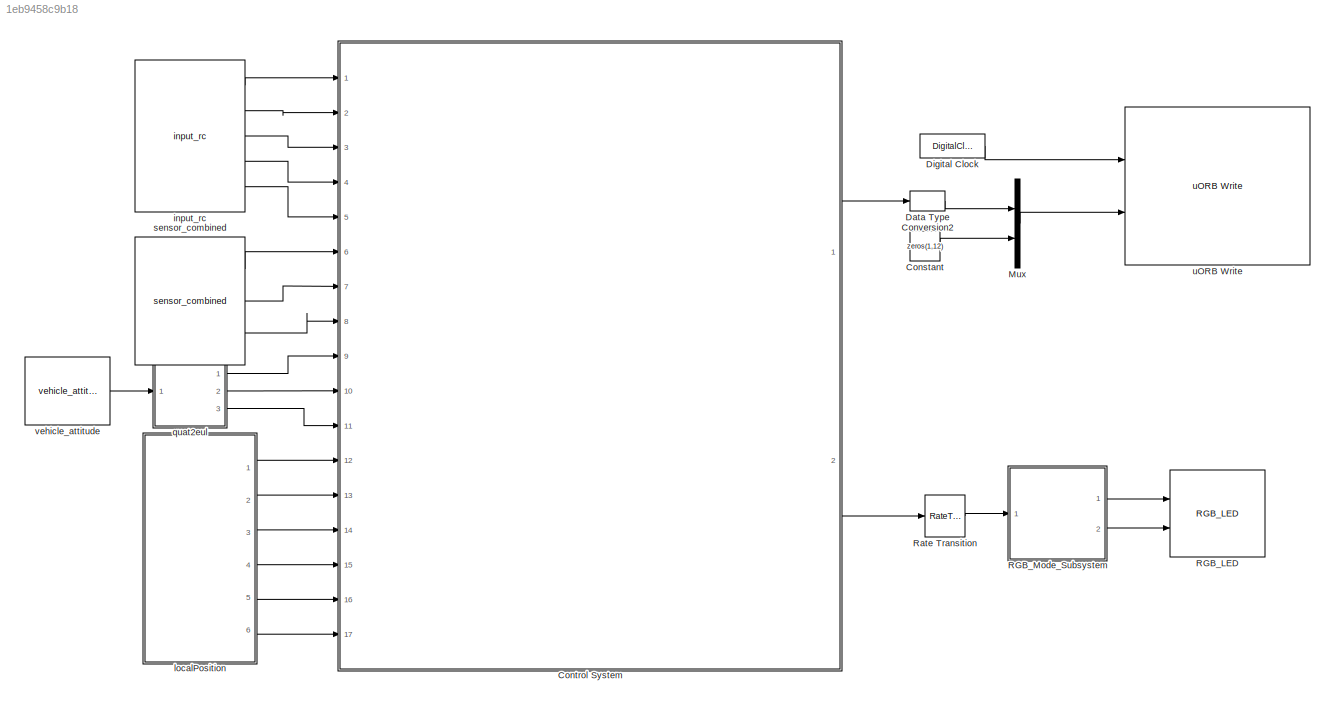
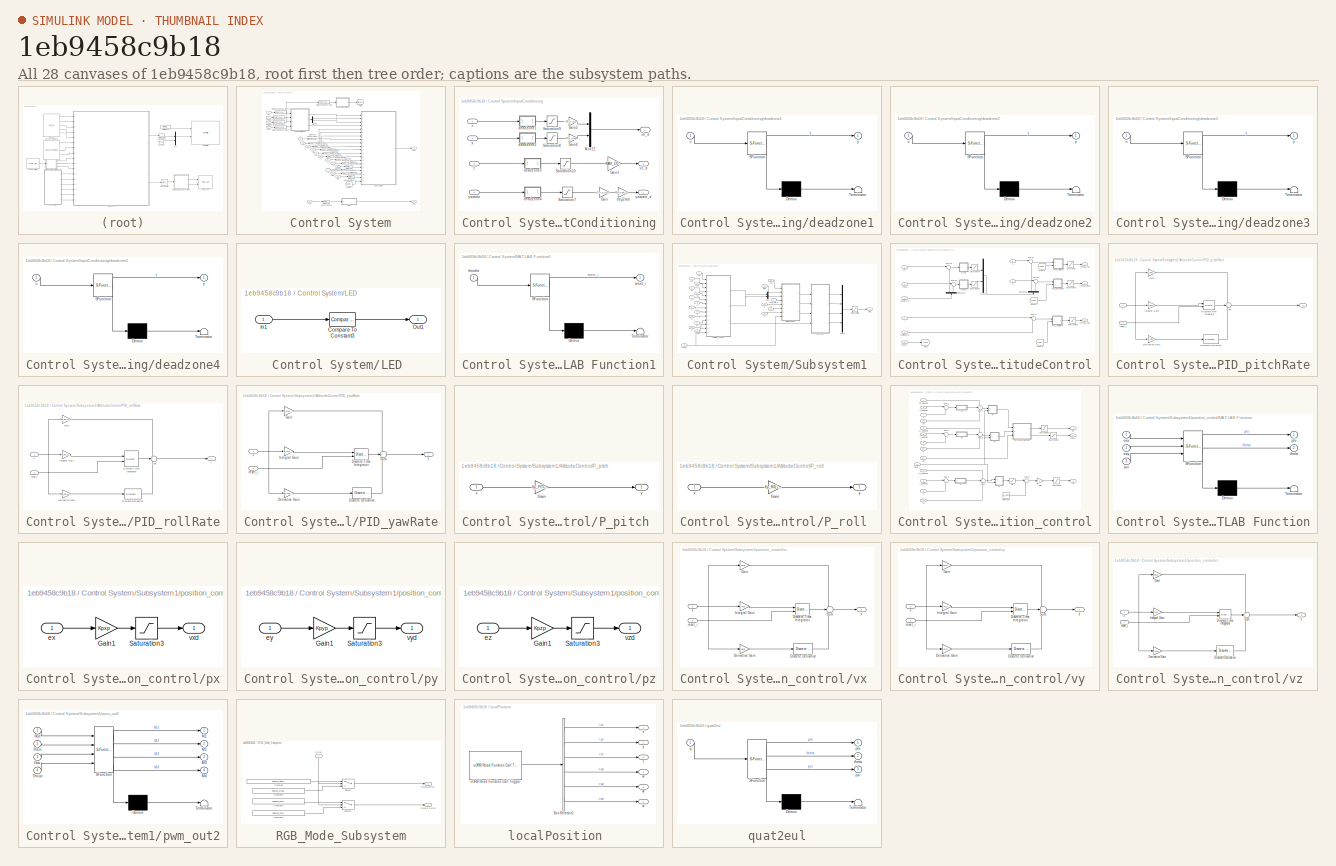
[diagram: thumbnail index - all 28 canvases of the model, root first then tree order]
MODEL slx_1eb9458c9b18
KIND model
CONFIG AbsTol = auto
CONFIG EnableMultiTasking = off
CONFIG FixedStep = auto
CONFIG InitFcn = Init_control\n
CONFIG MaxStep = auto
CONFIG MinStep = auto
CONFIG RelTol = 1e-3
CONFIG SampleTimeConstraint = Unconstrained
CONFIG Solver = FixedStepDiscrete
CONFIG SolverName = FixedStepDiscrete
CONFIG StartTime = 0.0
CONFIG StopTime = 10.0
BLOCK [Constant] Constant
  Value = zeros(1,12)
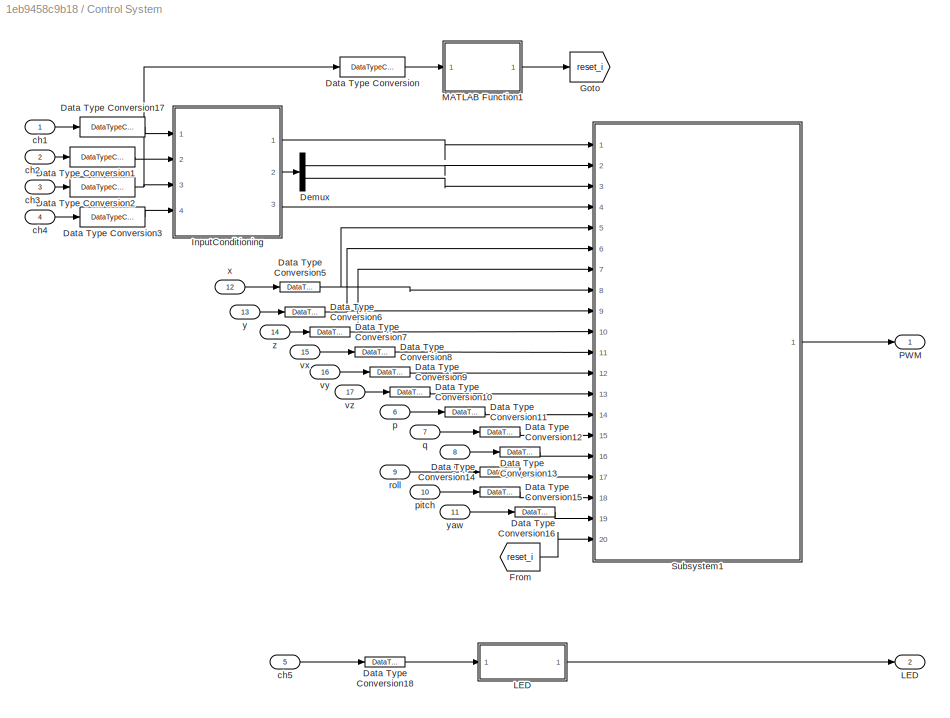
BLOCK [SubSystem] Control System
  Ports = [17, 2]
  RequestExecContextInheritance = off
  Variant = off
BLOCK [DataTypeConversion] Control System/Data Type Conversion
  OutDataTypeStr = double
  RndMeth = Floor
  SaturateOnIntegerOverflow = off
BLOCK [DataTypeConversion] Control System/Data Type Conversion1
  OutDataTypeStr = double
  RndMeth = Floor
  SaturateOnIntegerOverflow = off
BLOCK [DataTypeConversion] Control System/Data Type Conversion10
  OutDataTypeStr = double
  RndMeth = Floor
  SaturateOnIntegerOverflow = off
BLOCK [DataTypeConversion] Control System/Data Type Conversion11
  OutDataTypeStr = double
  RndMeth = Floor
  SaturateOnIntegerOverflow = off
BLOCK [DataTypeConversion] Control System/Data Type Conversion12
  OutDataTypeStr = double
  RndMeth = Floor
  SaturateOnIntegerOverflow = off
BLOCK [DataTypeConversion] Control System/Data Type Conversion13
  OutDataTypeStr = double
  RndMeth = Floor
  SaturateOnIntegerOverflow = off
BLOCK [DataTypeConversion] Control System/Data Type Conversion14
  OutDataTypeStr = double
  RndMeth = Floor
  SaturateOnIntegerOverflow = off
BLOCK [DataTypeConversion] Control System/Data Type Conversion15
  OutDataTypeStr = double
  RndMeth = Floor
  SaturateOnIntegerOverflow = off
BLOCK [DataTypeConversion] Control System/Data Type Conversion16
  OutDataTypeStr = double
  RndMeth = Floor
  SaturateOnIntegerOverflow = off
BLOCK [DataTypeConversion] Control System/Data Type Conversion17
  OutDataTypeStr = double
  RndMeth = Floor
  SaturateOnIntegerOverflow = off
BLOCK [DataTypeConversion] Control System/Data Type Conversion18
  OutDataTypeStr = double
  RndMeth = Floor
  SaturateOnIntegerOverflow = off
BLOCK [DataTypeConversion] Control System/Data Type Conversion2
  OutDataTypeStr = double
  RndMeth = Floor
  SaturateOnIntegerOverflow = off
BLOCK [DataTypeConversion] Control System/Data Type Conversion3
  OutDataTypeStr = double
  RndMeth = Floor
  SaturateOnIntegerOverflow = off
BLOCK [DataTypeConversion] Control System/Data Type Conversion5
  OutDataTypeStr = double
  RndMeth = Floor
  SaturateOnIntegerOverflow = off
BLOCK [DataTypeConversion] Control System/Data Type Conversion6
  OutDataTypeStr = double
  RndMeth = Floor
  SaturateOnIntegerOverflow = off
BLOCK [DataTypeConversion] Control System/Data Type Conversion7
  OutDataTypeStr = double
  RndMeth = Floor
  SaturateOnIntegerOverflow = off
BLOCK [DataTypeConversion] Control System/Data Type Conversion8
  OutDataTypeStr = double
  RndMeth = Floor
  SaturateOnIntegerOverflow = off
BLOCK [DataTypeConversion] Control System/Data Type Conversion9
  OutDataTypeStr = double
  RndMeth = Floor
  SaturateOnIntegerOverflow = off
BLOCK [Demux] Control System/Demux
  DisplayOption = bar
  Outputs = 2
  Ports = [1, 2]
BLOCK [From] Control System/From
  GotoTag = reset_i
BLOCK [Goto] Control System/Goto
  GotoTag = reset_i
BLOCK [SubSystem] Control System/InputConditioning
  Ports = [4, 3]
  RequestExecContextInheritance = off
  Variant = off
BLOCK [Gain] Control System/InputConditioning/Gain
  Gain = MAX_CONTROL_ANGLE_RATE_Y
  OutDataTypeStr = Inherit: Inherit via internal rule
  ParamDataTypeStr = Inherit: Inherit via internal rule
  SaturateOnIntegerOverflow = off
BLOCK [Gain] Control System/InputConditioning/Gain1
  Gain = -MAX_CONTROL_VELOCITY_Z
  OutDataTypeStr = Inherit: Inherit via back propagation
  ParamDataTypeStr = Inherit: Inherit via internal rule
  SaturateOnIntegerOverflow = off
BLOCK [Gain] Control System/InputConditioning/Gain3
  Gain = -MAX_CONTROL_VELOCITY_XY
  OutDataTypeStr = Inherit: Inherit via back propagation
  ParamDataTypeStr = Inherit: Inherit via internal rule
  SaturateOnIntegerOverflow = off
BLOCK [Gain] Control System/InputConditioning/Gain4
  Gain = MAX_CONTROL_VELOCITY_XY
  OutDataTypeStr = Inherit: Inherit via back propagation
  ParamDataTypeStr = Inherit: Inherit via internal rule
  SaturateOnIntegerOverflow = off
BLOCK [Mux] Control System/InputConditioning/Mux21
  DisplayOption = bar
  Inputs = 2
  Ports = [2, 1]
BLOCK [Saturate] Control System/InputConditioning/Saturation10
  InputPortMap = u0
  LowerLimit = -1
  Ports = [1, 1]
  UpperLimit = 1
BLOCK [Saturate] Control System/InputConditioning/Saturation7
  InputPortMap = u0
  LowerLimit = -1
  Ports = [1, 1]
  UpperLimit = 1
BLOCK [Saturate] Control System/InputConditioning/Saturation8
  InputPortMap = u0
  LowerLimit = -1
  Ports = [1, 1]
  UpperLimit = 1
BLOCK [Saturate] Control System/InputConditioning/Saturation9
  InputPortMap = u0
  LowerLimit = -1
  Ports = [1, 1]
  UpperLimit = 1
BLOCK [SubSystem] Control System/InputConditioning/deadzone1
  ErrorFcn = Stateflow.Translate.translate
  PermitHierarchicalResolution = ExplicitOnly
  Ports = [1, 1]
  RequestExecContextInheritance = off
  SFBlockType = MATLAB Function
  TreatAsAtomicUnit = on
  Variant = off
BLOCK [Demux] Control System/InputConditioning/deadzone1/ Demux 
  Outputs = 1
  Ports = [1, 1]
BLOCK [S-Function] Control System/InputConditioning/deadzone1/ SFunction 
  EnableBusSupport = on
  FunctionName = sf_sfun
  PortCounts = [1 2]
  Ports = [1, 2]
  SFcnIsStateOwnerBlock = off
  SFunctionDeploymentMode = off
  Tag = Stateflow S-Function PosControl_HIL 1
BLOCK [Terminator] Control System/InputConditioning/deadzone1/ Terminator 
BLOCK [Inport] Control System/InputConditioning/deadzone1/u
  IconDisplay = Port number
BLOCK [Outport] Control System/InputConditioning/deadzone1/y
  IconDisplay = Port number
BLOCK [SubSystem] Control System/InputConditioning/deadzone2
  ErrorFcn = Stateflow.Translate.translate
  PermitHierarchicalResolution = ExplicitOnly
  Ports = [1, 1]
  RequestExecContextInheritance = off
  SFBlockType = MATLAB Function
  TreatAsAtomicUnit = on
  Variant = off
BLOCK [Demux] Control System/InputConditioning/deadzone2/ Demux 
  Outputs = 1
  Ports = [1, 1]
BLOCK [S-Function] Control System/InputConditioning/deadzone2/ SFunction 
  EnableBusSupport = on
  FunctionName = sf_sfun
  PortCounts = [1 2]
  Ports = [1, 2]
  SFcnIsStateOwnerBlock = off
  SFunctionDeploymentMode = off
  Tag = Stateflow S-Function PosControl_HIL 2
BLOCK [Terminator] Control System/InputConditioning/deadzone2/ Terminator 
BLOCK [Inport] Control System/InputConditioning/deadzone2/u
  IconDisplay = Port number
BLOCK [Outport] Control System/InputConditioning/deadzone2/y
  IconDisplay = Port number
BLOCK [SubSystem] Control System/InputConditioning/deadzone3
  ErrorFcn = Stateflow.Translate.translate
  PermitHierarchicalResolution = ExplicitOnly
  Ports = [1, 1]
  RequestExecContextInheritance = off
  SFBlockType = MATLAB Function
  TreatAsAtomicUnit = on
  Variant = off
BLOCK [Demux] Control System/InputConditioning/deadzone3/ Demux 
  Outputs = 1
  Ports = [1, 1]
BLOCK [S-Function] Control System/InputConditioning/deadzone3/ SFunction 
  EnableBusSupport = on
  FunctionName = sf_sfun
  PortCounts = [1 2]
  Ports = [1, 2]
  SFcnIsStateOwnerBlock = off
  SFunctionDeploymentMode = off
  Tag = Stateflow S-Function PosControl_HIL 3
BLOCK [Terminator] Control System/InputConditioning/deadzone3/ Terminator 
BLOCK [Inport] Control System/InputConditioning/deadzone3/u
  IconDisplay = Port number
BLOCK [Outport] Control System/InputConditioning/deadzone3/y
  IconDisplay = Port number
BLOCK [SubSystem] Control System/InputConditioning/deadzone4
  ErrorFcn = Stateflow.Translate.translate
  PermitHierarchicalResolution = ExplicitOnly
  Ports = [1, 1]
  RequestExecContextInheritance = off
  SFBlockType = MATLAB Function
  TreatAsAtomicUnit = on
  Variant = off
BLOCK [Demux] Control System/InputConditioning/deadzone4/ Demux 
  Outputs = 1
  Ports = [1, 1]
BLOCK [S-Function] Control System/InputConditioning/deadzone4/ SFunction 
  EnableBusSupport = on
  FunctionName = sf_sfun
  PortCounts = [1 2]
  Ports = [1, 2]
  SFcnIsStateOwnerBlock = off
  SFunctionDeploymentMode = off
  Tag = Stateflow S-Function PosControl_HIL 5
BLOCK [Terminator] Control System/InputConditioning/deadzone4/ Terminator 
BLOCK [Inport] Control System/InputConditioning/deadzone4/u
  IconDisplay = Port number
BLOCK [Outport] Control System/InputConditioning/deadzone4/y
  IconDisplay = Port number
BLOCK [Gain] Control System/InputConditioning/deg2rad
  Gain = DEG2RAD
  OutDataTypeStr = Inherit: Inherit via internal rule
  ParamDataTypeStr = Inherit: Inherit via internal rule
  SaturateOnIntegerOverflow = off
BLOCK [Outport] Control System/InputConditioning/vh_d
  IconDisplay = Port number
  Port = 2
BLOCK [Outport] Control System/InputConditioning/vz_d
  IconDisplay = Port number
  Port = 3
BLOCK [Inport] Control System/InputConditioning/x
  IconDisplay = Port number
  Port = 2
BLOCK [Inport] Control System/InputConditioning/y
  IconDisplay = Port number
BLOCK [Inport] Control System/InputConditioning/yawrate 
  IconDisplay = Port number
  Port = 4
BLOCK [Outport] Control System/InputConditioning/yawrate_d
  IconDisplay = Port number
BLOCK [Inport] Control System/InputConditioning/z
  IconDisplay = Port number
  Port = 3
BLOCK [Outport] Control System/LED
  IconDisplay = Port number
  Port = 2
  PortDimensions = 1
  SamplingMode = Sample based
  SignalType = real
BLOCK [SubSystem] Control System/LED 
  Ports = [1, 1]
  RequestExecContextInheritance = off
  Variant = off
BLOCK [Reference] Control System/LED /Compare To Constant3  REF=simulink/Logic and Bit
Operations/Compare
To Constant
  Ports = [1, 1]
  SourceBlock = simulink/Logic and Bit\nOperations/Compare\nTo Constant
  SourceProductBaseCode = SL
  SourceProductName = Simulink
  SourceType = Compare To Constant
BLOCK [Inport] Control System/LED /In1
  IconDisplay = Port number
BLOCK [Outport] Control System/LED /Out1
  IconDisplay = Port number
BLOCK [SubSystem] Control System/MATLAB Function1
  ErrorFcn = Stateflow.Translate.translate
  PermitHierarchicalResolution = ExplicitOnly
  Ports = [1, 1]
  RequestExecContextInheritance = off
  SFBlockType = MATLAB Function
  TreatAsAtomicUnit = on
  Variant = off
BLOCK [Demux] Control System/MATLAB Function1/ Demux 
  Outputs = 1
  Ports = [1, 1]
BLOCK [S-Function] Control System/MATLAB Function1/ SFunction 
  EnableBusSupport = on
  FunctionName = sf_sfun
  PortCounts = [1 2]
  Ports = [1, 2]
  SFcnIsStateOwnerBlock = off
  SFunctionDeploymentMode = off
  Tag = Stateflow S-Function PosControl_HIL 4
BLOCK [Terminator] Control System/MATLAB Function1/ Terminator 
BLOCK [Outport] Control System/MATLAB Function1/reset_i
  IconDisplay = Port number
BLOCK [Inport] Control System/MATLAB Function1/throttle
  IconDisplay = Port number
BLOCK [Outport] Control System/PWM
  IconDisplay = Port number
  SamplingMode = Sample based
  SignalType = real
BLOCK [SubSystem] Control System/Subsystem1
  Ports = [20, 1]
  RequestExecContextInheritance = off
  Variant = off
BLOCK [SubSystem] Control System/Subsystem1/AttitudeControl
  Ports = [8, 3]
  RequestExecContextInheritance = off
  Variant = off
BLOCK [Demux] Control System/Subsystem1/AttitudeControl/Demux12
  DisplayOption = bar
  Outputs = 2
  Ports = [1, 2]
BLOCK [Demux] Control System/Subsystem1/AttitudeControl/Demux16
  DisplayOption = bar
  Outputs = 2
  Ports = [1, 2]
BLOCK [From] Control System/Subsystem1/AttitudeControl/From1
  GotoTag = reset
BLOCK [From] Control System/Subsystem1/AttitudeControl/From2
  GotoTag = reset
BLOCK [From] Control System/Subsystem1/AttitudeControl/From3
  GotoTag = reset
BLOCK [Goto] Control System/Subsystem1/AttitudeControl/Goto
  GotoTag = reset
BLOCK [Mux] Control System/Subsystem1/AttitudeControl/Mux22
  DisplayOption = bar
  Inputs = 2
  Ports = [2, 1]
BLOCK [SubSystem] Control System/Subsystem1/AttitudeControl/PID_pitchRate
  Ports = [2, 1]
  RequestExecContextInheritance = off
  Variant = off
BLOCK [Gain] Control System/Subsystem1/AttitudeControl/PID_pitchRate/Derivative Gain
  DisableCoverage = on
  Gain = Kd_PITCH_AngleRate
  OutDataTypeStr = Inherit: Inherit via internal rule
  OutMax = 100
  OutMin = -100
  ParamDataTypeStr = Inherit: Inherit via internal rule
  ParamMax = 100
  ParamMin = -100
  SaturateOnIntegerOverflow = off
BLOCK [Reference] Control System/Subsystem1/AttitudeControl/PID_pitchRate/Discrete Derivative  REF=simulink/Discrete/Discrete Derivative
  Ports = [1, 1]
  SourceBlock = simulink/Discrete/Discrete Derivative
  SourceProductBaseCode = SL
  SourceProductName = Simulink
  SourceType = Discrete Derivative
BLOCK [DiscreteIntegrator] Control System/Subsystem1/AttitudeControl/PID_pitchRate/Discrete-Time Integrator
  ExternalReset = either
  ICPrevOutput = DiscIntNeverNeededParam
  ICPrevScaledInput = DiscIntNeverNeededParam
  InitialConditionSetting = State (most efficient)
  LimitOutput = on
  LowerSaturationLimit = Saturation_I_RP_Min
  Ports = [2, 1]
  SampleTime = -1
  UpperSaturationLimit = Saturation_I_RP_Max
BLOCK [Gain] Control System/Subsystem1/AttitudeControl/PID_pitchRate/Gain
  Gain = Kp_PITCH_AngleRate
  OutDataTypeStr = Inherit: Inherit via internal rule
  ParamDataTypeStr = Inherit: Inherit via internal rule
  SaturateOnIntegerOverflow = off
BLOCK [Gain] Control System/Subsystem1/AttitudeControl/PID_pitchRate/Integral Gain
  DisableCoverage = on
  Gain = Ki_PITCH_AngleRate
  OutDataTypeStr = Inherit: Inherit via internal rule
  ParamDataTypeStr = Inherit: Inherit via internal rule
  SaturateOnIntegerOverflow = off
BLOCK [Sum] Control System/Subsystem1/AttitudeControl/PID_pitchRate/Sum
  IconShape = round
  InputSameDT = off
  Inputs = +++
  OutDataTypeStr = Inherit: Inherit via internal rule
  Ports = [3, 1]
  SaturateOnIntegerOverflow = off
BLOCK [Inport] Control System/Subsystem1/AttitudeControl/PID_pitchRate/reset_i
  IconDisplay = Port number
  Port = 2
BLOCK [Inport] Control System/Subsystem1/AttitudeControl/PID_pitchRate/x
  IconDisplay = Port number
BLOCK [Outport] Control System/Subsystem1/AttitudeControl/PID_pitchRate/y
  IconDisplay = Port number
  InitialOutput = 0
BLOCK [SubSystem] Control System/Subsystem1/AttitudeControl/PID_rollRate
  Ports = [2, 1]
  RequestExecContextInheritance = off
  Variant = off
BLOCK [Gain] Control System/Subsystem1/AttitudeControl/PID_rollRate/Derivative Gain
  DisableCoverage = on
  Gain = Kd_ROLL_AngleRate
  OutDataTypeStr = Inherit: Inherit via internal rule
  OutMax = 100
  OutMin = -100
  ParamDataTypeStr = Inherit: Inherit via internal rule
  ParamMax = 100
  ParamMin = -100
  SaturateOnIntegerOverflow = off
BLOCK [Reference] Control System/Subsystem1/AttitudeControl/PID_rollRate/Discrete Derivative  REF=simulink/Discrete/Discrete Derivative
  Ports = [1, 1]
  SourceBlock = simulink/Discrete/Discrete Derivative
  SourceProductBaseCode = SL
  SourceProductName = Simulink
  SourceType = Discrete Derivative
BLOCK [DiscreteIntegrator] Control System/Subsystem1/AttitudeControl/PID_rollRate/Discrete-Time Integrator
  ExternalReset = either
  ICPrevOutput = DiscIntNeverNeededParam
  ICPrevScaledInput = DiscIntNeverNeededParam
  InitialConditionSetting = State (most efficient)
  LimitOutput = on
  LowerSaturationLimit = Saturation_I_RP_Min
  Ports = [2, 1]
  SampleTime = -1
  UpperSaturationLimit = Saturation_I_RP_Max
BLOCK [Gain] Control System/Subsystem1/AttitudeControl/PID_rollRate/Gain
  Gain = Kp_ROLL_AngleRate
  OutDataTypeStr = Inherit: Inherit via internal rule
  ParamDataTypeStr = Inherit: Inherit via internal rule
  SaturateOnIntegerOverflow = off
BLOCK [Gain] Control System/Subsystem1/AttitudeControl/PID_rollRate/Integral Gain
  DisableCoverage = on
  Gain = Ki_ROLL_AngleRate
  OutDataTypeStr = Inherit: Inherit via internal rule
  ParamDataTypeStr = Inherit: Inherit via internal rule
  SaturateOnIntegerOverflow = off
BLOCK [Sum] Control System/Subsystem1/AttitudeControl/PID_rollRate/Sum
  IconShape = round
  InputSameDT = off
  Inputs = +++
  OutDataTypeStr = Inherit: Inherit via internal rule
  Ports = [3, 1]
  SaturateOnIntegerOverflow = off
BLOCK [Inport] Control System/Subsystem1/AttitudeControl/PID_rollRate/reset_i
  IconDisplay = Port number
  Port = 2
BLOCK [Inport] Control System/Subsystem1/AttitudeControl/PID_rollRate/x
  IconDisplay = Port number
BLOCK [Outport] Control System/Subsystem1/AttitudeControl/PID_rollRate/y
  IconDisplay = Port number
  InitialOutput = 0
BLOCK [SubSystem] Control System/Subsystem1/AttitudeControl/PID_yawRate
  Ports = [2, 1]
  RequestExecContextInheritance = off
  Variant = off
BLOCK [Gain] Control System/Subsystem1/AttitudeControl/PID_yawRate/Derivative Gain
  DisableCoverage = on
  Gain = Kd_YAW_AngleRate
  OutDataTypeStr = Inherit: Inherit via internal rule
  OutMax = 100
  OutMin = -100
  ParamDataTypeStr = Inherit: Inherit via internal rule
  ParamMax = 100
  ParamMin = -100
  SaturateOnIntegerOverflow = off
BLOCK [Reference] Control System/Subsystem1/AttitudeControl/PID_yawRate/Discrete Derivative  REF=simulink/Discrete/Discrete Derivative
  Ports = [1, 1]
  SourceBlock = simulink/Discrete/Discrete Derivative
  SourceProductBaseCode = SL
  SourceProductName = Simulink
  SourceType = Discrete Derivative
BLOCK [DiscreteIntegrator] Control System/Subsystem1/AttitudeControl/PID_yawRate/Discrete-Time Integrator
  ExternalReset = either
  ICPrevOutput = DiscIntNeverNeededParam
  ICPrevScaledInput = DiscIntNeverNeededParam
  InitialConditionSetting = State (most efficient)
  LimitOutput = on
  LowerSaturationLimit = Saturation_I_Y_Min
  Ports = [2, 1]
  SampleTime = -1
  UpperSaturationLimit = Saturation_I_Y_Max
BLOCK [Gain] Control System/Subsystem1/AttitudeControl/PID_yawRate/Gain
  Gain = Kp_YAW_AngleRate
  OutDataTypeStr = Inherit: Inherit via internal rule
  ParamDataTypeStr = Inherit: Inherit via internal rule
  SaturateOnIntegerOverflow = off
BLOCK [Gain] Control System/Subsystem1/AttitudeControl/PID_yawRate/Integral Gain
  DisableCoverage = on
  Gain = Ki_YAW_AngleRate
  OutDataTypeStr = Inherit: Inherit via internal rule
  ParamDataTypeStr = Inherit: Inherit via internal rule
  SaturateOnIntegerOverflow = off
BLOCK [Sum] Control System/Subsystem1/AttitudeControl/PID_yawRate/Sum
  IconShape = round
  InputSameDT = off
  Inputs = +++
  OutDataTypeStr = Inherit: Inherit via internal rule
  Ports = [3, 1]
  SaturateOnIntegerOverflow = off
BLOCK [Inport] Control System/Subsystem1/AttitudeControl/PID_yawRate/reset_i
  IconDisplay = Port number
  Port = 2
BLOCK [Inport] Control System/Subsystem1/AttitudeControl/PID_yawRate/x
  IconDisplay = Port number
BLOCK [Outport] Control System/Subsystem1/AttitudeControl/PID_yawRate/y
  IconDisplay = Port number
  InitialOutput = 0
BLOCK [SubSystem] Control System/Subsystem1/AttitudeControl/P_pitch 
  Ports = [1, 1]
  RequestExecContextInheritance = off
  Variant = off
BLOCK [Gain] Control System/Subsystem1/AttitudeControl/P_pitch /Gain
  Gain = Kp_PITCH_ANGLE
  OutDataTypeStr = Inherit: Inherit via internal rule
  ParamDataTypeStr = Inherit: Inherit via internal rule
  SaturateOnIntegerOverflow = off
BLOCK [Inport] Control System/Subsystem1/AttitudeControl/P_pitch /x
  IconDisplay = Port number
BLOCK [Outport] Control System/Subsystem1/AttitudeControl/P_pitch /y
  IconDisplay = Port number
  InitialOutput = 0
BLOCK [SubSystem] Control System/Subsystem1/AttitudeControl/P_roll 
  Ports = [1, 1]
  RequestExecContextInheritance = off
  Variant = off
BLOCK [Gain] Control System/Subsystem1/AttitudeControl/P_roll /Gain
  Gain = Kp_ROLL_ANGLE
  OutDataTypeStr = Inherit: Inherit via internal rule
  ParamDataTypeStr = Inherit: Inherit via internal rule
  SaturateOnIntegerOverflow = off
BLOCK [Inport] Control System/Subsystem1/AttitudeControl/P_roll /x
  IconDisplay = Port number
BLOCK [Outport] Control System/Subsystem1/AttitudeControl/P_roll /y
  IconDisplay = Port number
  InitialOutput = 0
BLOCK [Saturate] Control System/Subsystem1/AttitudeControl/Saturation
  InputPortMap = u0
  LowerLimit = -1
  Ports = [1, 1]
  UpperLimit = 1
BLOCK [Saturate] Control System/Subsystem1/AttitudeControl/Saturation1
  InputPortMap = u0
  LowerLimit = -1
  Ports = [1, 1]
  UpperLimit = 1
BLOCK [Saturate] Control System/Subsystem1/AttitudeControl/Saturation2
  InputPortMap = u0
  Ports = [1, 1]
BLOCK [Saturate] Control System/Subsystem1/AttitudeControl/Saturation3
  InputPortMap = u0
  LowerLimit = -MAX_CONTROL_ANGLE_RATE_PITCH
  Ports = [1, 1]
  UpperLimit = MAX_CONTROL_ANGLE_RATE_PITCH
BLOCK [Saturate] Control System/Subsystem1/AttitudeControl/Saturation4
  InputPortMap = u0
  LowerLimit = -MAX_CONTROL_ANGLE_RATE_ROLL
  Ports = [1, 1]
  UpperLimit = MAX_CONTROL_ANGLE_RATE_ROLL
BLOCK [Sum] Control System/Subsystem1/AttitudeControl/Sum17
  IconShape = round
  InputSameDT = off
  Inputs = |-+
  OutDataTypeStr = Inherit: Inherit via internal rule
  Ports = [2, 1]
  SaturateOnIntegerOverflow = off
BLOCK [Sum] Control System/Subsystem1/AttitudeControl/Sum18
  IconShape = round
  InputSameDT = off
  Inputs = |-+
  OutDataTypeStr = Inherit: Inherit via internal rule
  Ports = [2, 1]
  SaturateOnIntegerOverflow = off
BLOCK [Sum] Control System/Subsystem1/AttitudeControl/Sum19
  IconShape = round
  InputSameDT = off
  Inputs = |-+
  OutDataTypeStr = Inherit: Inherit via internal rule
  Ports = [2, 1]
  SaturateOnIntegerOverflow = off
BLOCK [Sum] Control System/Subsystem1/AttitudeControl/Sum21
  IconShape = round
  InputSameDT = off
  Inputs = |-+
  OutDataTypeStr = Inherit: Inherit via internal rule
  Ports = [2, 1]
  SaturateOnIntegerOverflow = off
BLOCK [Sum] Control System/Subsystem1/AttitudeControl/Sum22
  IconShape = round
  InputSameDT = off
  Inputs = |-+
  OutDataTypeStr = Inherit: Inherit via internal rule
  Ports = [2, 1]
  SaturateOnIntegerOverflow = off
BLOCK [Inport] Control System/Subsystem1/AttitudeControl/p
  IconDisplay = Port number
  Port = 5
BLOCK [Inport] Control System/Subsystem1/AttitudeControl/phi
  IconDisplay = Port number
BLOCK [Inport] Control System/Subsystem1/AttitudeControl/q
  IconDisplay = Port number
  Port = 6
BLOCK [Inport] Control System/Subsystem1/AttitudeControl/r
  IconDisplay = Port number
  Port = 7
BLOCK [Inport] Control System/Subsystem1/AttitudeControl/reset_i
  IconDisplay = Port number
  Port = 8
BLOCK [Inport] Control System/Subsystem1/AttitudeControl/roll_pitch_d
  IconDisplay = Port number
  Port = 3
BLOCK [Inport] Control System/Subsystem1/AttitudeControl/theta
  IconDisplay = Port number
  Port = 2
BLOCK [Outport] Control System/Subsystem1/AttitudeControl/torque_pitch
  IconDisplay = Port number
  Port = 2
BLOCK [Outport] Control System/Subsystem1/AttitudeControl/torque_roll
  IconDisplay = Port number
BLOCK [Outport] Control System/Subsystem1/AttitudeControl/torque_yaw
  IconDisplay = Port number
  Port = 3
BLOCK [Inport] Control System/Subsystem1/AttitudeControl/yawRate_d
  IconDisplay = Port number
  Port = 4
BLOCK [Mux] Control System/Subsystem1/Mux
  DisplayOption = bar
  Inputs = 2
  Ports = [2, 1]
BLOCK [Mux] Control System/Subsystem1/Mux12
  DisplayOption = bar
  Ports = [4, 1]
BLOCK [Outport] Control System/Subsystem1/Out1
  IconDisplay = Port number
BLOCK [Saturate] Control System/Subsystem1/Output_Limits1
  InputPortMap = u0
  LowerLimit = single(1000)
  Ports = [1, 1]
  UpperLimit = single(2000)
BLOCK [Inport] Control System/Subsystem1/p
  IconDisplay = Port number
  Port = 14
  PortDimensions = 1
  SamplingMode = Sample based
  SignalType = real
BLOCK [Inport] Control System/Subsystem1/pitch
  IconDisplay = Port number
  Port = 18
  PortDimensions = 1
  SamplingMode = Sample based
  SignalType = real
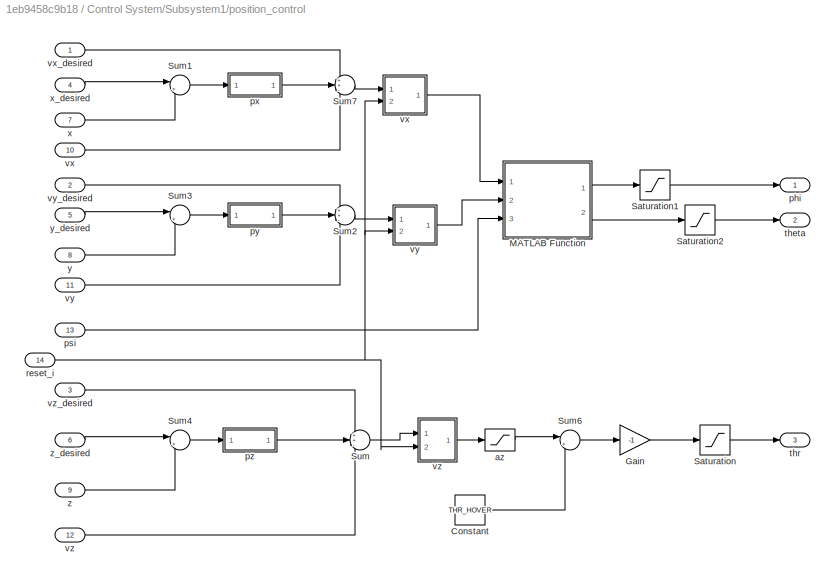
BLOCK [SubSystem] Control System/Subsystem1/position_control
  Ports = [14, 3]
  RequestExecContextInheritance = off
  Variant = off
BLOCK [Constant] Control System/Subsystem1/position_control/Constant
  Value = THR_HOVER
BLOCK [Gain] Control System/Subsystem1/position_control/Gain
  Gain = -1
  OutDataTypeStr = Inherit: Inherit via internal rule
  ParamDataTypeStr = Inherit: Inherit via internal rule
  SaturateOnIntegerOverflow = off
BLOCK [SubSystem] Control System/Subsystem1/position_control/MATLAB Function
  ErrorFcn = Stateflow.Translate.translate
  PermitHierarchicalResolution = ExplicitOnly
  Ports = [3, 2]
  RequestExecContextInheritance = off
  SFBlockType = MATLAB Function
  TreatAsAtomicUnit = on
  Variant = off
BLOCK [Demux] Control System/Subsystem1/position_control/MATLAB Function/ Demux 
  Outputs = 1
  Ports = [1, 1]
BLOCK [S-Function] Control System/Subsystem1/position_control/MATLAB Function/ SFunction 
  EnableBusSupport = on
  FunctionName = sf_sfun
  PortCounts = [3 3]
  Ports = [3, 3]
  SFcnIsStateOwnerBlock = off
  SFunctionDeploymentMode = off
  Tag = Stateflow S-Function PosControl_HIL 7
BLOCK [Terminator] Control System/Subsystem1/position_control/MATLAB Function/ Terminator 
BLOCK [Inport] Control System/Subsystem1/position_control/MATLAB Function/eax
  IconDisplay = Port number
BLOCK [Inport] Control System/Subsystem1/position_control/MATLAB Function/eay
  IconDisplay = Port number
  Port = 2
BLOCK [Outport] Control System/Subsystem1/position_control/MATLAB Function/phi
  IconDisplay = Port number
BLOCK [Inport] Control System/Subsystem1/position_control/MATLAB Function/psi
  IconDisplay = Port number
  Port = 3
BLOCK [Outport] Control System/Subsystem1/position_control/MATLAB Function/theta
  IconDisplay = Port number
  Port = 2
BLOCK [Saturate] Control System/Subsystem1/position_control/Saturation
  InputPortMap = u0
  LowerLimit = 0
  Ports = [1, 1]
  UpperLimit = MAX_MAN_THR
BLOCK [Saturate] Control System/Subsystem1/position_control/Saturation1
  InputPortMap = u0
  LowerLimit = -MAX_CONTROL_ANGLE_ROLL*DEG2RAD
  Ports = [1, 1]
  UpperLimit = MAX_CONTROL_ANGLE_ROLL*DEG2RAD
BLOCK [Saturate] Control System/Subsystem1/position_control/Saturation2
  InputPortMap = u0
  LowerLimit = -MAX_CONTROL_ANGLE_PITCH*DEG2RAD
  Ports = [1, 1]
  UpperLimit = MAX_CONTROL_ANGLE_PITCH*DEG2RAD
BLOCK [Sum] Control System/Subsystem1/position_control/Sum
  IconShape = round
  InputSameDT = off
  Inputs = ++-
  OutDataTypeStr = Inherit: Inherit via internal rule
  Ports = [3, 1]
  SaturateOnIntegerOverflow = off
BLOCK [Sum] Control System/Subsystem1/position_control/Sum1
  IconShape = round
  InputSameDT = off
  Inputs = |+-
  OutDataTypeStr = Inherit: Inherit via internal rule
  Ports = [2, 1]
  SaturateOnIntegerOverflow = off
BLOCK [Sum] Control System/Subsystem1/position_control/Sum2
  IconShape = round
  InputSameDT = off
  Inputs = ++-
  OutDataTypeStr = Inherit: Inherit via internal rule
  Ports = [3, 1]
  SaturateOnIntegerOverflow = off
BLOCK [Sum] Control System/Subsystem1/position_control/Sum3
  IconShape = round
  InputSameDT = off
  Inputs = |+-
  OutDataTypeStr = Inherit: Inherit via internal rule
  Ports = [2, 1]
  SaturateOnIntegerOverflow = off
BLOCK [Sum] Control System/Subsystem1/position_control/Sum4
  IconShape = round
  InputSameDT = off
  Inputs = |+-
  OutDataTypeStr = Inherit: Inherit via internal rule
  Ports = [2, 1]
  SaturateOnIntegerOverflow = off
BLOCK [Sum] Control System/Subsystem1/position_control/Sum6
  IconShape = round
  InputSameDT = off
  Inputs = |+-
  OutDataTypeStr = Inherit: Inherit via internal rule
  Ports = [2, 1]
  SaturateOnIntegerOverflow = off
BLOCK [Sum] Control System/Subsystem1/position_control/Sum7
  IconShape = round
  InputSameDT = off
  Inputs = ++-
  OutDataTypeStr = Inherit: Inherit via internal rule
  Ports = [3, 1]
  SaturateOnIntegerOverflow = off
BLOCK [Saturate] Control System/Subsystem1/position_control/az
  InputPortMap = u0
  LowerLimit = -0.4
  Ports = [1, 1]
  UpperLimit = 0.4
BLOCK [Outport] Control System/Subsystem1/position_control/phi
  IconDisplay = Port number
BLOCK [Inport] Control System/Subsystem1/position_control/psi
  IconDisplay = Port number
  Port = 13
BLOCK [SubSystem] Control System/Subsystem1/position_control/px
  Ports = [1, 1]
  RequestExecContextInheritance = off
  Variant = off
BLOCK [Gain] Control System/Subsystem1/position_control/px/Gain1
  Gain = Kpxp
  OutDataTypeStr = Inherit: Inherit via internal rule
  ParamDataTypeStr = Inherit: Inherit via internal rule
  SaturateOnIntegerOverflow = off
BLOCK [Saturate] Control System/Subsystem1/position_control/px/Saturation3
  InputPortMap = u0
  LowerLimit = -MAX_CONTROL_VELOCITY_XY
  Ports = [1, 1]
  UpperLimit = MAX_CONTROL_VELOCITY_XY
BLOCK [Inport] Control System/Subsystem1/position_control/px/ex
  IconDisplay = Port number
BLOCK [Outport] Control System/Subsystem1/position_control/px/vxd
  IconDisplay = Port number
BLOCK [SubSystem] Control System/Subsystem1/position_control/py
  Ports = [1, 1]
  RequestExecContextInheritance = off
  Variant = off
BLOCK [Gain] Control System/Subsystem1/position_control/py/Gain1
  Gain = Kpyp
  OutDataTypeStr = Inherit: Inherit via internal rule
  ParamDataTypeStr = Inherit: Inherit via internal rule
  SaturateOnIntegerOverflow = off
BLOCK [Saturate] Control System/Subsystem1/position_control/py/Saturation3
  InputPortMap = u0
  LowerLimit = -MAX_CONTROL_VELOCITY_XY
  Ports = [1, 1]
  UpperLimit = MAX_CONTROL_VELOCITY_XY
BLOCK [Inport] Control System/Subsystem1/position_control/py/ey
  IconDisplay = Port number
BLOCK [Outport] Control System/Subsystem1/position_control/py/vyd
  IconDisplay = Port number
BLOCK [SubSystem] Control System/Subsystem1/position_control/pz
  Ports = [1, 1]
  RequestExecContextInheritance = off
  Variant = off
BLOCK [Gain] Control System/Subsystem1/position_control/pz/Gain1
  Gain = Kpzp
  OutDataTypeStr = Inherit: Inherit via internal rule
  ParamDataTypeStr = Inherit: Inherit via internal rule
  SaturateOnIntegerOverflow = off
BLOCK [Saturate] Control System/Subsystem1/position_control/pz/Saturation3
  InputPortMap = u0
  LowerLimit = -MAX_CONTROL_VELOCITY_Z
  Ports = [1, 1]
  UpperLimit = MAX_CONTROL_VELOCITY_Z
BLOCK [Inport] Control System/Subsystem1/position_control/pz/ez
  IconDisplay = Port number
BLOCK [Outport] Control System/Subsystem1/position_control/pz/vzd
  IconDisplay = Port number
BLOCK [Inport] Control System/Subsystem1/position_control/reset_i
  IconDisplay = Port number
  Port = 14
BLOCK [Outport] Control System/Subsystem1/position_control/theta
  IconDisplay = Port number
  Port = 2
BLOCK [Outport] Control System/Subsystem1/position_control/thr
  IconDisplay = Port number
  Port = 3
BLOCK [Inport] Control System/Subsystem1/position_control/vx
  IconDisplay = Port number
  Port = 10
BLOCK [SubSystem] Control System/Subsystem1/position_control/vx 
  Ports = [2, 1]
  RequestExecContextInheritance = off
  Variant = off
BLOCK [Gain] Control System/Subsystem1/position_control/vx /Derivative Gain
  DisableCoverage = on
  Gain = Kvxd
  OutDataTypeStr = Inherit: Inherit via internal rule
  ParamDataTypeStr = Inherit: Inherit via internal rule
  SaturateOnIntegerOverflow = off
BLOCK [Reference] Control System/Subsystem1/position_control/vx /Discrete Derivative  REF=simulink/Discrete/Discrete Derivative
  Ports = [1, 1]
  SourceBlock = simulink/Discrete/Discrete Derivative
  SourceProductBaseCode = SL
  SourceProductName = Simulink
  SourceType = Discrete Derivative
BLOCK [DiscreteIntegrator] Control System/Subsystem1/position_control/vx /Discrete-Time Integrator
  ExternalReset = level
  ICPrevOutput = DiscIntNeverNeededParam
  ICPrevScaledInput = DiscIntNeverNeededParam
  InitialConditionSetting = State (most efficient)
  LimitOutput = on
  LowerSaturationLimit = -Saturation_I_ah
  Ports = [2, 1]
  SampleTime = -1
  UpperSaturationLimit = Saturation_I_ah
BLOCK [Gain] Control System/Subsystem1/position_control/vx /Gain
  Gain = Kvxp
  OutDataTypeStr = Inherit: Inherit via internal rule
  ParamDataTypeStr = Inherit: Inherit via internal rule
  SaturateOnIntegerOverflow = off
BLOCK [Gain] Control System/Subsystem1/position_control/vx /Integral Gain
  DisableCoverage = on
  Gain = Kvxi
  OutDataTypeStr = Inherit: Inherit via internal rule
  ParamDataTypeStr = Inherit: Inherit via internal rule
  SaturateOnIntegerOverflow = off
BLOCK [Sum] Control System/Subsystem1/position_control/vx /Sum
  IconShape = round
  InputSameDT = off
  Inputs = +++
  OutDataTypeStr = Inherit: Inherit via internal rule
  Ports = [3, 1]
  SaturateOnIntegerOverflow = off
BLOCK [Inport] Control System/Subsystem1/position_control/vx /reset_i
  IconDisplay = Port number
  Port = 2
BLOCK [Inport] Control System/Subsystem1/position_control/vx /x
  IconDisplay = Port number
BLOCK [Outport] Control System/Subsystem1/position_control/vx /y
  IconDisplay = Port number
  InitialOutput = 0
BLOCK [Inport] Control System/Subsystem1/position_control/vx_desired
  IconDisplay = Port number
BLOCK [Inport] Control System/Subsystem1/position_control/vy
  IconDisplay = Port number
  Port = 11
BLOCK [SubSystem] Control System/Subsystem1/position_control/vy 
  Ports = [2, 1]
  RequestExecContextInheritance = off
  Variant = off
BLOCK [Gain] Control System/Subsystem1/position_control/vy /Derivative Gain
  DisableCoverage = on
  Gain = Kvyd
  OutDataTypeStr = Inherit: Inherit via internal rule
  ParamDataTypeStr = Inherit: Inherit via internal rule
  SaturateOnIntegerOverflow = off
BLOCK [Reference] Control System/Subsystem1/position_control/vy /Discrete Derivative  REF=simulink/Discrete/Discrete Derivative
  Ports = [1, 1]
  SourceBlock = simulink/Discrete/Discrete Derivative
  SourceProductBaseCode = SL
  SourceProductName = Simulink
  SourceType = Discrete Derivative
BLOCK [DiscreteIntegrator] Control System/Subsystem1/position_control/vy /Discrete-Time Integrator
  ExternalReset = level
  ICPrevOutput = DiscIntNeverNeededParam
  ICPrevScaledInput = DiscIntNeverNeededParam
  InitialConditionSetting = State (most efficient)
  LimitOutput = on
  LowerSaturationLimit = -Saturation_I_ah
  Ports = [2, 1]
  SampleTime = -1
  UpperSaturationLimit = Saturation_I_ah
BLOCK [Gain] Control System/Subsystem1/position_control/vy /Gain
  Gain = Kvyp
  OutDataTypeStr = Inherit: Inherit via internal rule
  ParamDataTypeStr = Inherit: Inherit via internal rule
  SaturateOnIntegerOverflow = off
BLOCK [Gain] Control System/Subsystem1/position_control/vy /Integral Gain
  DisableCoverage = on
  Gain = Kvyi
  OutDataTypeStr = Inherit: Inherit via internal rule
  ParamDataTypeStr = Inherit: Inherit via internal rule
  SaturateOnIntegerOverflow = off
BLOCK [Sum] Control System/Subsystem1/position_control/vy /Sum
  IconShape = round
  InputSameDT = off
  Inputs = +++
  OutDataTypeStr = Inherit: Inherit via internal rule
  OutMax = 5
  OutMin = -5
  Ports = [3, 1]
  SaturateOnIntegerOverflow = off
BLOCK [Inport] Control System/Subsystem1/position_control/vy /reset_i
  IconDisplay = Port number
  Port = 2
BLOCK [Inport] Control System/Subsystem1/position_control/vy /x
  IconDisplay = Port number
BLOCK [Outport] Control System/Subsystem1/position_control/vy /y
  IconDisplay = Port number
  InitialOutput = 0
BLOCK [Inport] Control System/Subsystem1/position_control/vy_desired
  IconDisplay = Port number
  Port = 2
BLOCK [Inport] Control System/Subsystem1/position_control/vz
  IconDisplay = Port number
  Port = 12
BLOCK [SubSystem] Control System/Subsystem1/position_control/vz 
  Ports = [2, 1]
  RequestExecContextInheritance = off
  Variant = off
BLOCK [Gain] Control System/Subsystem1/position_control/vz /Derivative Gain
  DisableCoverage = on
  Gain = Kvzd
  OutDataTypeStr = Inherit: Inherit via internal rule
  ParamDataTypeStr = Inherit: Inherit via internal rule
  SaturateOnIntegerOverflow = off
BLOCK [Reference] Control System/Subsystem1/position_control/vz /Discrete Derivative  REF=simulink/Discrete/Discrete Derivative
  Ports = [1, 1]
  SourceBlock = simulink/Discrete/Discrete Derivative
  SourceProductBaseCode = SL
  SourceProductName = Simulink
  SourceType = Discrete Derivative
BLOCK [DiscreteIntegrator] Control System/Subsystem1/position_control/vz /Discrete-Time Integrator
  ExternalReset = level
  ICPrevOutput = DiscIntNeverNeededParam
  ICPrevScaledInput = DiscIntNeverNeededParam
  InitialConditionSetting = State (most efficient)
  LimitOutput = on
  LowerSaturationLimit = -Saturation_I_az
  Ports = [2, 1]
  SampleTime = -1
  UpperSaturationLimit = Saturation_I_az
BLOCK [Gain] Control System/Subsystem1/position_control/vz /Gain
  Gain = Kvzp
  OutDataTypeStr = Inherit: Inherit via internal rule
  ParamDataTypeStr = Inherit: Inherit via internal rule
  SaturateOnIntegerOverflow = off
BLOCK [Gain] Control System/Subsystem1/position_control/vz /Integral Gain
  DisableCoverage = on
  Gain = Kvzi
  OutDataTypeStr = Inherit: Inherit via internal rule
  ParamDataTypeStr = Inherit: Inherit via internal rule
  SaturateOnIntegerOverflow = off
BLOCK [Sum] Control System/Subsystem1/position_control/vz /Sum
  IconShape = round
  InputSameDT = off
  Inputs = +++
  OutDataTypeStr = Inherit: Inherit via internal rule
  Ports = [3, 1]
  SaturateOnIntegerOverflow = off
BLOCK [Inport] Control System/Subsystem1/position_control/vz /reset_i
  IconDisplay = Port number
  Port = 2
BLOCK [Inport] Control System/Subsystem1/position_control/vz /x
  IconDisplay = Port number
BLOCK [Outport] Control System/Subsystem1/position_control/vz /y
  IconDisplay = Port number
  InitialOutput = 0
BLOCK [Inport] Control System/Subsystem1/position_control/vz_desired
  IconDisplay = Port number
  Port = 3
BLOCK [Inport] Control System/Subsystem1/position_control/x
  IconDisplay = Port number
  Port = 7
BLOCK [Inport] Control System/Subsystem1/position_control/x_desired
  IconDisplay = Port number
  Port = 4
BLOCK [Inport] Control System/Subsystem1/position_control/y
  IconDisplay = Port number
  Port = 8
BLOCK [Inport] Control System/Subsystem1/position_control/y_desired
  IconDisplay = Port number
  Port = 5
BLOCK [Inport] Control System/Subsystem1/position_control/z
  IconDisplay = Port number
  Port = 9
BLOCK [Inport] Control System/Subsystem1/position_control/z_desired
  IconDisplay = Port number
  Port = 6
BLOCK [SubSystem] Control System/Subsystem1/pwm_out2
  ErrorFcn = Stateflow.Translate.translate
  PermitHierarchicalResolution = ExplicitOnly
  Ports = [4, 4]
  RequestExecContextInheritance = off
  SFBlockType = MATLAB Function
  SystemSampleTime = 0.004
  Variant = off
BLOCK [Demux] Control System/Subsystem1/pwm_out2/ Demux 
  Outputs = 1
  Ports = [1, 1]
BLOCK [S-Function] Control System/Subsystem1/pwm_out2/ SFunction 
  EnableBusSupport = on
  FunctionName = sf_sfun
  PortCounts = [4 5]
  Ports = [4, 5]
  SFcnIsStateOwnerBlock = off
  SFunctionDeploymentMode = off
  Tag = Stateflow S-Function PosControl_HIL 14
BLOCK [Terminator] Control System/Subsystem1/pwm_out2/ Terminator 
BLOCK [Outport] Control System/Subsystem1/pwm_out2/M1
  IconDisplay = Port number
BLOCK [Outport] Control System/Subsystem1/pwm_out2/M2
  IconDisplay = Port number
  Port = 2
BLOCK [Outport] Control System/Subsystem1/pwm_out2/M3
  IconDisplay = Port number
  Port = 3
BLOCK [Outport] Control System/Subsystem1/pwm_out2/M4
  IconDisplay = Port number
  Port = 4
BLOCK [Inport] Control System/Subsystem1/pwm_out2/Pitch
  IconDisplay = Port number
  Port = 2
BLOCK [Inport] Control System/Subsystem1/pwm_out2/Roll
  IconDisplay = Port number
BLOCK [Inport] Control System/Subsystem1/pwm_out2/Thrust
  IconDisplay = Port number
  Port = 4
BLOCK [Inport] Control System/Subsystem1/pwm_out2/Yaw
  IconDisplay = Port number
  Port = 3
BLOCK [Inport] Control System/Subsystem1/q
  IconDisplay = Port number
  Port = 15
  PortDimensions = 1
  SamplingMode = Sample based
  SignalType = real
BLOCK [Inport] Control System/Subsystem1/r
  IconDisplay = Port number
  Port = 16
  PortDimensions = 1
  SamplingMode = Sample based
  SignalType = real
BLOCK [Inport] Control System/Subsystem1/reset_i
  IconDisplay = Port number
  Port = 20
BLOCK [Inport] Control System/Subsystem1/roll
  IconDisplay = Port number
  Port = 17
  PortDimensions = 1
  SamplingMode = Sample based
  SignalType = real
BLOCK [Inport] Control System/Subsystem1/vx
  IconDisplay = Port number
  Port = 11
BLOCK [Inport] Control System/Subsystem1/vxd
  IconDisplay = Port number
  Port = 2
BLOCK [Inport] Control System/Subsystem1/vy
  IconDisplay = Port number
  Port = 12
BLOCK [Inport] Control System/Subsystem1/vyd
  IconDisplay = Port number
  Port = 3
BLOCK [Inport] Control System/Subsystem1/vz
  IconDisplay = Port number
  Port = 13
BLOCK [Inport] Control System/Subsystem1/vzd
  IconDisplay = Port number
  Port = 4
BLOCK [Inport] Control System/Subsystem1/x
  IconDisplay = Port number
  Port = 8
BLOCK [Inport] Control System/Subsystem1/xd
  IconDisplay = Port number
  Port = 5
BLOCK [Inport] Control System/Subsystem1/y
  IconDisplay = Port number
  Port = 9
BLOCK [Inport] Control System/Subsystem1/yaw
  IconDisplay = Port number
  Port = 19
BLOCK [Inport] Control System/Subsystem1/yaw_rate_d
  IconDisplay = Port number
BLOCK [Inport] Control System/Subsystem1/yd
  IconDisplay = Port number
  Port = 6
BLOCK [Inport] Control System/Subsystem1/z
  IconDisplay = Port number
  Port = 10
BLOCK [Inport] Control System/Subsystem1/zd
  IconDisplay = Port number
  Port = 7
BLOCK [Inport] Control System/ch1
  IconDisplay = Port number
  OutDataTypeStr = uint16
  PortDimensions = 1
  SamplingMode = Sample based
  SignalType = real
BLOCK [Inport] Control System/ch2
  IconDisplay = Port number
  OutDataTypeStr = uint16
  Port = 2
  PortDimensions = 1
  SamplingMode = Sample based
  SignalType = real
BLOCK [Inport] Control System/ch3
  IconDisplay = Port number
  OutDataTypeStr = uint16
  Port = 3
  PortDimensions = 1
  SamplingMode = Sample based
  SignalType = real
BLOCK [Inport] Control System/ch4
  IconDisplay = Port number
  OutDataTypeStr = uint16
  Port = 4
  PortDimensions = 1
  SamplingMode = Sample based
  SignalType = real
BLOCK [Inport] Control System/ch5
  IconDisplay = Port number
  Interpolate = off
  OutDataTypeStr = uint16
  Port = 5
  PortDimensions = 1
  SamplingMode = Sample based
  SignalType = real
BLOCK [Inport] Control System/p
  IconDisplay = Port number
  Port = 6
  PortDimensions = 1
  SamplingMode = Sample based
  SignalType = real
BLOCK [Inport] Control System/pitch
  IconDisplay = Port number
  Port = 10
  PortDimensions = 1
  SamplingMode = Sample based
  SignalType = real
BLOCK [Inport] Control System/q
  IconDisplay = Port number
  Port = 7
  PortDimensions = 1
  SamplingMode = Sample based
  SignalType = real
BLOCK [Inport] Control System/r
  IconDisplay = Port number
  Port = 8
  PortDimensions = 1
  SamplingMode = Sample based
  SignalType = real
BLOCK [Inport] Control System/roll
  IconDisplay = Port number
  Port = 9
  PortDimensions = 1
  SamplingMode = Sample based
  SignalType = real
BLOCK [Inport] Control System/vx
  IconDisplay = Port number
  Port = 15
  PortDimensions = 1
  SamplingMode = Sample based
  SignalType = real
BLOCK [Inport] Control System/vy
  IconDisplay = Port number
  Port = 16
  PortDimensions = 1
  SamplingMode = Sample based
  SignalType = real
BLOCK [Inport] Control System/vz
  IconDisplay = Port number
  Port = 17
  PortDimensions = 1
  SamplingMode = Sample based
  SignalType = real
BLOCK [Inport] Control System/x
  IconDisplay = Port number
  Port = 12
  PortDimensions = 1
  SamplingMode = Sample based
  SignalType = real
BLOCK [Inport] Control System/y
  IconDisplay = Port number
  Port = 13
  PortDimensions = 1
  SamplingMode = Sample based
  SignalType = real
BLOCK [Inport] Control System/yaw
  IconDisplay = Port number
  Port = 11
  PortDimensions = 1
  SamplingMode = Sample based
  SignalType = real
BLOCK [Inport] Control System/z
  IconDisplay = Port number
  Port = 14
  PortDimensions = 1
  SamplingMode = Sample based
  SignalType = real
BLOCK [DataTypeConversion] Data Type Conversion2
  OutDataTypeStr = double
  RndMeth = Floor
  SaturateOnIntegerOverflow = off
BLOCK [DigitalClock] Digital Clock
  SampleTime = -1
BLOCK [Mux] Mux
  DisplayOption = bar
  Inputs = 2
  Ports = [2, 1]
BLOCK [Reference] RGB_LED  REF=pixhawk_slib_sensors_actuators/RGB_LED
  Ports = [2]
  SourceBlock = pixhawk_slib_sensors_actuators/RGB_LED
  SourceProductName = Pixhawk Target Blocks
  SourceType = PX4_RGBLED - controls the mode and color of the Pixhawk RGB LED
BLOCK [SubSystem] RGB_Mode_Subsystem
  Ports = [1, 2]
  RequestExecContextInheritance = off
  Variant = off
BLOCK [Constant] RGB_Mode_Subsystem/Constant
  OutDataTypeStr = Enum: RGBLED_MODE_ENUM
  Value = RGBLED_MODE_ENUM.SL_MODE_BLINK_FAST
BLOCK [Constant] RGB_Mode_Subsystem/Constant1
  OutDataTypeStr = Enum: RGBLED_MODE_ENUM
  Value = RGBLED_MODE_ENUM.SL_MODE_BREATHE
BLOCK [Constant] RGB_Mode_Subsystem/Constant2
  OutDataTypeStr = Enum: RGBLED_COLOR_ENUM
  Value = RGBLED_COLOR_ENUM.SL_COLOR_GREEN
BLOCK [Constant] RGB_Mode_Subsystem/Constant3
  OutDataTypeStr = Enum: RGBLED_COLOR_ENUM
  Value = RGBLED_COLOR_ENUM.SL_COLOR_RED
BLOCK [Inport] RGB_Mode_Subsystem/RGB
  IconDisplay = Port number
BLOCK [Outport] RGB_Mode_Subsystem/RGB_COLOR
  IconDisplay = Port number
  Port = 2
BLOCK [Outport] RGB_Mode_Subsystem/RGB_MODE
  IconDisplay = Port number
BLOCK [Switch] RGB_Mode_Subsystem/Switch
  InputSameDT = off
  SaturateOnIntegerOverflow = off
  Threshold = 1500
BLOCK [Switch] RGB_Mode_Subsystem/Switch1
  InputSameDT = off
  SaturateOnIntegerOverflow = off
  Threshold = 1500
BLOCK [RateTransition] Rate Transition
  OutPortSampleTime = 1
BLOCK [Reference] input_rc  REF=pixhawk_slib_sensors_actuators/input_rc
  Description = RC Input Block\n\nThis block provides user input control to the model.\nIt uses the input_rc uORB topic.\n\nThe user has the ability to choose which channels are available as outputs from this block and also some optional outputs. These include \nChannels 1 through 18\ndouble data type indicating the PWM value from the controller \nmeasured pulse widths for each of the supported channels \nChannel Count \nu...<+1797ch>
  Ports = [0, 5]
  SourceBlock = pixhawk_slib_sensors_actuators/input_rc
  SourceProductName = Pixhawk Target Blocks
  SourceType = PX4_Input_RC
BLOCK [SubSystem] localPosition 
  Ports = [0, 6]
  RequestExecContextInheritance = off
  Variant = off
BLOCK [BusSelector] localPosition /Bus Selector2
  OutputAsBus = off
  OutputSignals = x,y,z,vx,vy,vz
  Ports = [1, 6]
BLOCK [Reference] localPosition /uORB Read Function-Call Trigger  REF=pixhawk_slib_uORB_RW/uORB Read Function-Call Trigger
  Ports = [0, 1]
  SourceBlock = pixhawk_slib_uORB_RW/uORB Read Function-Call Trigger
  SourceProductName = Pixhawk Target Blocks
BLOCK [Outport] localPosition /vx
  IconDisplay = Port number
  Port = 4
BLOCK [Outport] localPosition /vy
  IconDisplay = Port number
  Port = 5
BLOCK [Outport] localPosition /vz
  IconDisplay = Port number
  Port = 6
BLOCK [Outport] localPosition /x
  IconDisplay = Port number
BLOCK [Outport] localPosition /y
  IconDisplay = Port number
  Port = 2
BLOCK [Outport] localPosition /z
  IconDisplay = Port number
  Port = 3
BLOCK [SubSystem] quat2eul
  ErrorFcn = Stateflow.Translate.translate
  PermitHierarchicalResolution = ExplicitOnly
  Ports = [1, 3]
  RequestExecContextInheritance = off
  SFBlockType = MATLAB Function
  TreatAsAtomicUnit = on
  Variant = off
BLOCK [Demux] quat2eul/ Demux 
  Outputs = 1
  Ports = [1, 1]
BLOCK [S-Function] quat2eul/ SFunction 
  EnableBusSupport = on
  FunctionName = sf_sfun
  PortCounts = [1 4]
  Ports = [1, 4]
  SFcnIsStateOwnerBlock = off
  SFunctionDeploymentMode = off
  Tag = Stateflow S-Function PosControl_HIL 10
BLOCK [Terminator] quat2eul/ Terminator 
BLOCK [Outport] quat2eul/phi
  IconDisplay = Port number
BLOCK [Outport] quat2eul/psi
  IconDisplay = Port number
  Port = 3
BLOCK [Inport] quat2eul/q
  IconDisplay = Port number
BLOCK [Outport] quat2eul/theta
  IconDisplay = Port number
  Port = 2
BLOCK [Reference] sensor_combined  REF=pixhawk_slib_sensors_actuators/sensor_combined
  Description = Sensor Combined Block\n\nThis block enables access to the various sensors available on the px4fmu-v2 hardware.  \nThe user can use these signals in the Simulink control model.  \nThe sample time needs to be provided in the mask dialog.  \nOptional output ports can also be selected.  \nRefer to the sample model: px4demo_attitude_control.slx\n\nSignal definitions: \nMagnetometer (x,y,z) - single values – Mag...<+514ch>
  Ports = [0, 3]
  SourceBlock = pixhawk_slib_sensors_actuators/sensor_combined
  SourceProductName = Pixhawk Target Blocks
  SourceType = PX4_Sensor_Combined
BLOCK [Reference] uORB Write  REF=pixhawk_slib_uORB_RW/uORB Write
  Ports = [2]
  SourceBlock = pixhawk_slib_uORB_RW/uORB Write
  SourceProductName = Pixhawk Target Blocks
BLOCK [Reference] vehicle_attitude  REF=pixhawk_slib_sensors_actuators/vehicle_attitude
  Description = This block gives access to the running service that calculates the vehicle’s attitude.  A uORB topic (vehicle_attitude (attitude measurements)) publisher MUST be running in order for this block to provide valid signal values.  The available ones as of v1.3 are: \nattitude_estimator_ekf – EKF-Extended Kalman Filter for attitude estimation \nattitude_estimator_so3 – SO(3)-attitude estimation by using ...<+515ch>
  Ports = [0, 1]
  SourceBlock = pixhawk_slib_sensors_actuators/vehicle_attitude
  SourceProductName = Pixhawk Target Blocks
  SourceType = PX4_Vehicle_Attitude
LINE Constant:1 -> Mux:2
LINE Control System/Data Type Conversion10:1 -> Control System/Subsystem1:13
LINE Control System/Data Type Conversion11:1 -> Control System/Subsystem1:14
LINE Control System/Data Type Conversion12:1 -> Control System/Subsystem1:15
LINE Control System/Data Type Conversion13:1 -> Control System/Subsystem1:16
LINE Control System/Data Type Conversion14:1 -> Control System/Subsystem1:17
LINE Control System/Data Type Conversion15:1 -> Control System/Subsystem1:18
LINE Control System/Data Type Conversion16:1 -> Control System/Subsystem1:19
LINE Control System/Data Type Conversion17:1 -> Control System/InputConditioning:1
LINE Control System/Data Type Conversion18:1 -> Control System/LED :1
LINE Control System/Data Type Conversion1:1 -> Control System/InputConditioning:2
NET Control System/Data Type Conversion2:1 -> Control System/Data Type Conversion:1, Control System/InputConditioning:3
LINE Control System/Data Type Conversion3:1 -> Control System/InputConditioning:4
NET Control System/Data Type Conversion5:1 -> Control System/Subsystem1:5, Control System/Subsystem1:8
NET Control System/Data Type Conversion6:1 -> Control System/Subsystem1:6, Control System/Subsystem1:9
NET Control System/Data Type Conversion7:1 -> Control System/Subsystem1:10, Control System/Subsystem1:7
LINE Control System/Data Type Conversion8:1 -> Control System/Subsystem1:11
LINE Control System/Data Type Conversion9:1 -> Control System/Subsystem1:12
LINE Control System/Data Type Conversion:1 -> Control System/MATLAB Function1:1
LINE Control System/Demux:1 -> Control System/Subsystem1:2
LINE Control System/Demux:2 -> Control System/Subsystem1:3
LINE Control System/From:1 -> Control System/Subsystem1:20
LINE Control System/InputConditioning/Gain1:1 -> Control System/InputConditioning/vz_d:1
LINE Control System/InputConditioning/Gain3:1 -> Control System/InputConditioning/Mux21:1
LINE Control System/InputConditioning/Gain4:1 -> Control System/InputConditioning/Mux21:2
LINE Control System/InputConditioning/Gain:1 -> Control System/InputConditioning/deg2rad:1
LINE Control System/InputConditioning/Mux21:1 -> Control System/InputConditioning/vh_d:1
LINE Control System/InputConditioning/Saturation10:1 -> Control System/InputConditioning/Gain1:1
LINE Control System/InputConditioning/Saturation7:1 -> Control System/InputConditioning/Gain:1
LINE Control System/InputConditioning/Saturation8:1 -> Control System/InputConditioning/Gain4:1
LINE Control System/InputConditioning/Saturation9:1 -> Control System/InputConditioning/Gain3:1
LINE Control System/InputConditioning/deadzone1:1 -> Control System/InputConditioning/Saturation9:1
LINE Control System/InputConditioning/deadzone2:1 -> Control System/InputConditioning/Saturation8:1
LINE Control System/InputConditioning/deadzone3:1 -> Control System/InputConditioning/Saturation10:1
LINE Control System/InputConditioning/deadzone4:1 -> Control System/InputConditioning/Saturation7:1
LINE Control System/InputConditioning/deg2rad:1 -> Control System/InputConditioning/yawrate_d:1
LINE Control System/InputConditioning/x:1 -> Control System/InputConditioning/deadzone1:1
LINE Control System/InputConditioning/y:1 -> Control System/InputConditioning/deadzone2:1
LINE Control System/InputConditioning/yawrate :1 -> Control System/InputConditioning/deadzone4:1
LINE Control System/InputConditioning/z:1 -> Control System/InputConditioning/deadzone3:1
LINE Control System/InputConditioning:1 -> Control System/Subsystem1:1
LINE Control System/InputConditioning:2 -> Control System/Demux:1
LINE Control System/InputConditioning:3 -> Control System/Subsystem1:4
LINE Control System/LED /Compare To Constant3:1 -> Control System/LED /Out1:1
LINE Control System/LED /In1:1 -> Control System/LED /Compare To Constant3:1
LINE Control System/LED :1 -> Control System/LED:1
LINE Control System/MATLAB Function1:1 -> Control System/Goto:1
LINE Control System/Subsystem1/AttitudeControl/Demux12:1 -> Control System/Subsystem1/AttitudeControl/Sum18:2
LINE Control System/Subsystem1/AttitudeControl/Demux12:2 -> Control System/Subsystem1/AttitudeControl/Sum19:2
LINE Control System/Subsystem1/AttitudeControl/Demux16:1 -> Control System/Subsystem1/AttitudeControl/Sum21:2
LINE Control System/Subsystem1/AttitudeControl/Demux16:2 -> Control System/Subsystem1/AttitudeControl/Sum22:2
LINE Control System/Subsystem1/AttitudeControl/From1:1 -> Control System/Subsystem1/AttitudeControl/PID_pitchRate:2
LINE Control System/Subsystem1/AttitudeControl/From2:1 -> Control System/Subsystem1/AttitudeControl/PID_rollRate:2
LINE Control System/Subsystem1/AttitudeControl/From3:1 -> Control System/Subsystem1/AttitudeControl/PID_yawRate:2
LINE Control System/Subsystem1/AttitudeControl/Mux22:1 -> Control System/Subsystem1/AttitudeControl/Demux16:1
LINE Control System/Subsystem1/AttitudeControl/PID_pitchRate/Derivative Gain:1 -> Control System/Subsystem1/AttitudeControl/PID_pitchRate/Discrete Derivative:1
LINE Control System/Subsystem1/AttitudeControl/PID_pitchRate/Discrete Derivative:1 -> Control System/Subsystem1/AttitudeControl/PID_pitchRate/Sum:3
LINE Control System/Subsystem1/AttitudeControl/PID_pitchRate/Discrete-Time Integrator:1 -> Control System/Subsystem1/AttitudeControl/PID_pitchRate/Sum:2
LINE Control System/Subsystem1/AttitudeControl/PID_pitchRate/Gain:1 -> Control System/Subsystem1/AttitudeControl/PID_pitchRate/Sum:1
LINE Control System/Subsystem1/AttitudeControl/PID_pitchRate/Integral Gain:1 -> Control System/Subsystem1/AttitudeControl/PID_pitchRate/Discrete-Time Integrator:1
LINE Control System/Subsystem1/AttitudeControl/PID_pitchRate/Sum:1 -> Control System/Subsystem1/AttitudeControl/PID_pitchRate/y:1
LINE Control System/Subsystem1/AttitudeControl/PID_pitchRate/reset_i:1 -> Control System/Subsystem1/AttitudeControl/PID_pitchRate/Discrete-Time Integrator:2
NET Control System/Subsystem1/AttitudeControl/PID_pitchRate/x:1 -> Control System/Subsystem1/AttitudeControl/PID_pitchRate/Derivative Gain:1, Control System/Subsystem1/AttitudeControl/PID_pitchRate/Gain:1, Control System/Subsystem1/AttitudeControl/PID_pitchRate/Integral Gain:1
LINE Control System/Subsystem1/AttitudeControl/PID_pitchRate:1 -> Control System/Subsystem1/AttitudeControl/Saturation1:1
LINE Control System/Subsystem1/AttitudeControl/PID_rollRate/Derivative Gain:1 -> Control System/Subsystem1/AttitudeControl/PID_rollRate/Discrete Derivative:1
LINE Control System/Subsystem1/AttitudeControl/PID_rollRate/Discrete Derivative:1 -> Control System/Subsystem1/AttitudeControl/PID_rollRate/Sum:3
LINE Control System/Subsystem1/AttitudeControl/PID_rollRate/Discrete-Time Integrator:1 -> Control System/Subsystem1/AttitudeControl/PID_rollRate/Sum:2
LINE Control System/Subsystem1/AttitudeControl/PID_rollRate/Gain:1 -> Control System/Subsystem1/AttitudeControl/PID_rollRate/Sum:1
LINE Control System/Subsystem1/AttitudeControl/PID_rollRate/Integral Gain:1 -> Control System/Subsystem1/AttitudeControl/PID_rollRate/Discrete-Time Integrator:1
LINE Control System/Subsystem1/AttitudeControl/PID_rollRate/Sum:1 -> Control System/Subsystem1/AttitudeControl/PID_rollRate/y:1
LINE Control System/Subsystem1/AttitudeControl/PID_rollRate/reset_i:1 -> Control System/Subsystem1/AttitudeControl/PID_rollRate/Discrete-Time Integrator:2
NET Control System/Subsystem1/AttitudeControl/PID_rollRate/x:1 -> Control System/Subsystem1/AttitudeControl/PID_rollRate/Derivative Gain:1, Control System/Subsystem1/AttitudeControl/PID_rollRate/Gain:1, Control System/Subsystem1/AttitudeControl/PID_rollRate/Integral Gain:1
LINE Control System/Subsystem1/AttitudeControl/PID_rollRate:1 -> Control System/Subsystem1/AttitudeControl/Saturation:1
LINE Control System/Subsystem1/AttitudeControl/PID_yawRate/Derivative Gain:1 -> Control System/Subsystem1/AttitudeControl/PID_yawRate/Discrete Derivative:1
LINE Control System/Subsystem1/AttitudeControl/PID_yawRate/Discrete Derivative:1 -> Control System/Subsystem1/AttitudeControl/PID_yawRate/Sum:3
LINE Control System/Subsystem1/AttitudeControl/PID_yawRate/Discrete-Time Integrator:1 -> Control System/Subsystem1/AttitudeControl/PID_yawRate/Sum:2
LINE Control System/Subsystem1/AttitudeControl/PID_yawRate/Gain:1 -> Control System/Subsystem1/AttitudeControl/PID_yawRate/Sum:1
LINE Control System/Subsystem1/AttitudeControl/PID_yawRate/Integral Gain:1 -> Control System/Subsystem1/AttitudeControl/PID_yawRate/Discrete-Time Integrator:1
LINE Control System/Subsystem1/AttitudeControl/PID_yawRate/Sum:1 -> Control System/Subsystem1/AttitudeControl/PID_yawRate/y:1
LINE Control System/Subsystem1/AttitudeControl/PID_yawRate/reset_i:1 -> Control System/Subsystem1/AttitudeControl/PID_yawRate/Discrete-Time Integrator:2
NET Control System/Subsystem1/AttitudeControl/PID_yawRate/x:1 -> Control System/Subsystem1/AttitudeControl/PID_yawRate/Derivative Gain:1, Control System/Subsystem1/AttitudeControl/PID_yawRate/Gain:1, Control System/Subsystem1/AttitudeControl/PID_yawRate/Integral Gain:1
LINE Control System/Subsystem1/AttitudeControl/PID_yawRate:1 -> Control System/Subsystem1/AttitudeControl/Saturation2:1
LINE Control System/Subsystem1/AttitudeControl/P_pitch /Gain:1 -> Control System/Subsystem1/AttitudeControl/P_pitch /y:1
LINE Control System/Subsystem1/AttitudeControl/P_pitch /x:1 -> Control System/Subsystem1/AttitudeControl/P_pitch /Gain:1
LINE Control System/Subsystem1/AttitudeControl/P_pitch :1 -> Control System/Subsystem1/AttitudeControl/Saturation3:1
LINE Control System/Subsystem1/AttitudeControl/P_roll /Gain:1 -> Control System/Subsystem1/AttitudeControl/P_roll /y:1
LINE Control System/Subsystem1/AttitudeControl/P_roll /x:1 -> Control System/Subsystem1/AttitudeControl/P_roll /Gain:1
LINE Control System/Subsystem1/AttitudeControl/P_roll :1 -> Control System/Subsystem1/AttitudeControl/Saturation4:1
LINE Control System/Subsystem1/AttitudeControl/Saturation1:1 -> Control System/Subsystem1/AttitudeControl/torque_pitch:1
LINE Control System/Subsystem1/AttitudeControl/Saturation2:1 -> Control System/Subsystem1/AttitudeControl/torque_yaw:1
LINE Control System/Subsystem1/AttitudeControl/Saturation3:1 -> Control System/Subsystem1/AttitudeControl/Mux22:2
LINE Control System/Subsystem1/AttitudeControl/Saturation4:1 -> Control System/Subsystem1/AttitudeControl/Mux22:1
LINE Control System/Subsystem1/AttitudeControl/Saturation:1 -> Control System/Subsystem1/AttitudeControl/torque_roll:1
LINE Control System/Subsystem1/AttitudeControl/Sum17:1 -> Control System/Subsystem1/AttitudeControl/PID_yawRate:1
LINE Control System/Subsystem1/AttitudeControl/Sum18:1 -> Control System/Subsystem1/AttitudeControl/P_roll :1
LINE Control System/Subsystem1/AttitudeControl/Sum19:1 -> Control System/Subsystem1/AttitudeControl/P_pitch :1
LINE Control System/Subsystem1/AttitudeControl/Sum21:1 -> Control System/Subsystem1/AttitudeControl/PID_rollRate:1
LINE Control System/Subsystem1/AttitudeControl/Sum22:1 -> Control System/Subsystem1/AttitudeControl/PID_pitchRate:1
LINE Control System/Subsystem1/AttitudeControl/p:1 -> Control System/Subsystem1/AttitudeControl/Sum21:1
LINE Control System/Subsystem1/AttitudeControl/phi:1 -> Control System/Subsystem1/AttitudeControl/Sum18:1
LINE Control System/Subsystem1/AttitudeControl/q:1 -> Control System/Subsystem1/AttitudeControl/Sum22:1
LINE Control System/Subsystem1/AttitudeControl/r:1 -> Control System/Subsystem1/AttitudeControl/Sum17:1
LINE Control System/Subsystem1/AttitudeControl/reset_i:1 -> Control System/Subsystem1/AttitudeControl/Goto:1
LINE Control System/Subsystem1/AttitudeControl/roll_pitch_d:1 -> Control System/Subsystem1/AttitudeControl/Demux12:1
LINE Control System/Subsystem1/AttitudeControl/theta:1 -> Control System/Subsystem1/AttitudeControl/Sum19:1
LINE Control System/Subsystem1/AttitudeControl/yawRate_d:1 -> Control System/Subsystem1/AttitudeControl/Sum17:2
LINE Control System/Subsystem1/AttitudeControl:1 -> Control System/Subsystem1/pwm_out2:1
LINE Control System/Subsystem1/AttitudeControl:2 -> Control System/Subsystem1/pwm_out2:2
LINE Control System/Subsystem1/AttitudeControl:3 -> Control System/Subsystem1/pwm_out2:3
LINE Control System/Subsystem1/Mux12:1 -> Control System/Subsystem1/Output_Limits1:1
LINE Control System/Subsystem1/Mux:1 -> Control System/Subsystem1/AttitudeControl:3
LINE Control System/Subsystem1/Output_Limits1:1 -> Control System/Subsystem1/Out1:1
LINE Control System/Subsystem1/p:1 -> Control System/Subsystem1/AttitudeControl:5
LINE Control System/Subsystem1/pitch:1 -> Control System/Subsystem1/AttitudeControl:2
LINE Control System/Subsystem1/position_control/Constant:1 -> Control System/Subsystem1/position_control/Sum6:2
LINE Control System/Subsystem1/position_control/Gain:1 -> Control System/Subsystem1/position_control/Saturation:1
LINE Control System/Subsystem1/position_control/MATLAB Function:1 -> Control System/Subsystem1/position_control/Saturation1:1
LINE Control System/Subsystem1/position_control/MATLAB Function:2 -> Control System/Subsystem1/position_control/Saturation2:1
LINE Control System/Subsystem1/position_control/Saturation1:1 -> Control System/Subsystem1/position_control/phi:1
LINE Control System/Subsystem1/position_control/Saturation2:1 -> Control System/Subsystem1/position_control/theta:1
LINE Control System/Subsystem1/position_control/Saturation:1 -> Control System/Subsystem1/position_control/thr:1
LINE Control System/Subsystem1/position_control/Sum1:1 -> Control System/Subsystem1/position_control/px:1
LINE Control System/Subsystem1/position_control/Sum2:1 -> Control System/Subsystem1/position_control/vy :1
LINE Control System/Subsystem1/position_control/Sum3:1 -> Control System/Subsystem1/position_control/py:1
LINE Control System/Subsystem1/position_control/Sum4:1 -> Control System/Subsystem1/position_control/pz:1
LINE Control System/Subsystem1/position_control/Sum6:1 -> Control System/Subsystem1/position_control/Gain:1
LINE Control System/Subsystem1/position_control/Sum7:1 -> Control System/Subsystem1/position_control/vx :1
LINE Control System/Subsystem1/position_control/Sum:1 -> Control System/Subsystem1/position_control/vz :1
LINE Control System/Subsystem1/position_control/az:1 -> Control System/Subsystem1/position_control/Sum6:1
LINE Control System/Subsystem1/position_control/psi:1 -> Control System/Subsystem1/position_control/MATLAB Function:3
LINE Control System/Subsystem1/position_control/px/Gain1:1 -> Control System/Subsystem1/position_control/px/Saturation3:1
LINE Control System/Subsystem1/position_control/px/Saturation3:1 -> Control System/Subsystem1/position_control/px/vxd:1
LINE Control System/Subsystem1/position_control/px/ex:1 -> Control System/Subsystem1/position_control/px/Gain1:1
LINE Control System/Subsystem1/position_control/px:1 -> Control System/Subsystem1/position_control/Sum7:2
LINE Control System/Subsystem1/position_control/py/Gain1:1 -> Control System/Subsystem1/position_control/py/Saturation3:1
LINE Control System/Subsystem1/position_control/py/Saturation3:1 -> Control System/Subsystem1/position_control/py/vyd:1
LINE Control System/Subsystem1/position_control/py/ey:1 -> Control System/Subsystem1/position_control/py/Gain1:1
LINE Control System/Subsystem1/position_control/py:1 -> Control System/Subsystem1/position_control/Sum2:2
LINE Control System/Subsystem1/position_control/pz/Gain1:1 -> Control System/Subsystem1/position_control/pz/Saturation3:1
LINE Control System/Subsystem1/position_control/pz/Saturation3:1 -> Control System/Subsystem1/position_control/pz/vzd:1
LINE Control System/Subsystem1/position_control/pz/ez:1 -> Control System/Subsystem1/position_control/pz/Gain1:1
LINE Control System/Subsystem1/position_control/pz:1 -> Control System/Subsystem1/position_control/Sum:2
NET Control System/Subsystem1/position_control/reset_i:1 -> Control System/Subsystem1/position_control/vx :2, Control System/Subsystem1/position_control/vy :2, Control System/Subsystem1/position_control/vz :2
LINE Control System/Subsystem1/position_control/vx /Derivative Gain:1 -> Control System/Subsystem1/position_control/vx /Discrete Derivative:1
LINE Control System/Subsystem1/position_control/vx /Discrete Derivative:1 -> Control System/Subsystem1/position_control/vx /Sum:3
LINE Control System/Subsystem1/position_control/vx /Discrete-Time Integrator:1 -> Control System/Subsystem1/position_control/vx /Sum:2
LINE Control System/Subsystem1/position_control/vx /Gain:1 -> Control System/Subsystem1/position_control/vx /Sum:1
LINE Control System/Subsystem1/position_control/vx /Integral Gain:1 -> Control System/Subsystem1/position_control/vx /Discrete-Time Integrator:1
LINE Control System/Subsystem1/position_control/vx /Sum:1 -> Control System/Subsystem1/position_control/vx /y:1
LINE Control System/Subsystem1/position_control/vx /reset_i:1 -> Control System/Subsystem1/position_control/vx /Discrete-Time Integrator:2
NET Control System/Subsystem1/position_control/vx /x:1 -> Control System/Subsystem1/position_control/vx /Derivative Gain:1, Control System/Subsystem1/position_control/vx /Gain:1, Control System/Subsystem1/position_control/vx /Integral Gain:1
LINE Control System/Subsystem1/position_control/vx :1 -> Control System/Subsystem1/position_control/MATLAB Function:1
LINE Control System/Subsystem1/position_control/vx:1 -> Control System/Subsystem1/position_control/Sum7:3
LINE Control System/Subsystem1/position_control/vx_desired:1 -> Control System/Subsystem1/position_control/Sum7:1
LINE Control System/Subsystem1/position_control/vy /Derivative Gain:1 -> Control System/Subsystem1/position_control/vy /Discrete Derivative:1
LINE Control System/Subsystem1/position_control/vy /Discrete Derivative:1 -> Control System/Subsystem1/position_control/vy /Sum:3
LINE Control System/Subsystem1/position_control/vy /Discrete-Time Integrator:1 -> Control System/Subsystem1/position_control/vy /Sum:2
LINE Control System/Subsystem1/position_control/vy /Gain:1 -> Control System/Subsystem1/position_control/vy /Sum:1
LINE Control System/Subsystem1/position_control/vy /Integral Gain:1 -> Control System/Subsystem1/position_control/vy /Discrete-Time Integrator:1
LINE Control System/Subsystem1/position_control/vy /Sum:1 -> Control System/Subsystem1/position_control/vy /y:1
LINE Control System/Subsystem1/position_control/vy /reset_i:1 -> Control System/Subsystem1/position_control/vy /Discrete-Time Integrator:2
NET Control System/Subsystem1/position_control/vy /x:1 -> Control System/Subsystem1/position_control/vy /Derivative Gain:1, Control System/Subsystem1/position_control/vy /Gain:1, Control System/Subsystem1/position_control/vy /Integral Gain:1
LINE Control System/Subsystem1/position_control/vy :1 -> Control System/Subsystem1/position_control/MATLAB Function:2
LINE Control System/Subsystem1/position_control/vy:1 -> Control System/Subsystem1/position_control/Sum2:3
LINE Control System/Subsystem1/position_control/vy_desired:1 -> Control System/Subsystem1/position_control/Sum2:1
LINE Control System/Subsystem1/position_control/vz /Derivative Gain:1 -> Control System/Subsystem1/position_control/vz /Discrete Derivative:1
LINE Control System/Subsystem1/position_control/vz /Discrete Derivative:1 -> Control System/Subsystem1/position_control/vz /Sum:3
LINE Control System/Subsystem1/position_control/vz /Discrete-Time Integrator:1 -> Control System/Subsystem1/position_control/vz /Sum:2
LINE Control System/Subsystem1/position_control/vz /Gain:1 -> Control System/Subsystem1/position_control/vz /Sum:1
LINE Control System/Subsystem1/position_control/vz /Integral Gain:1 -> Control System/Subsystem1/position_control/vz /Discrete-Time Integrator:1
LINE Control System/Subsystem1/position_control/vz /Sum:1 -> Control System/Subsystem1/position_control/vz /y:1
LINE Control System/Subsystem1/position_control/vz /reset_i:1 -> Control System/Subsystem1/position_control/vz /Discrete-Time Integrator:2
NET Control System/Subsystem1/position_control/vz /x:1 -> Control System/Subsystem1/position_control/vz /Derivative Gain:1, Control System/Subsystem1/position_control/vz /Gain:1, Control System/Subsystem1/position_control/vz /Integral Gain:1
LINE Control System/Subsystem1/position_control/vz :1 -> Control System/Subsystem1/position_control/az:1
LINE Control System/Subsystem1/position_control/vz:1 -> Control System/Subsystem1/position_control/Sum:3
LINE Control System/Subsystem1/position_control/vz_desired:1 -> Control System/Subsystem1/position_control/Sum:1
LINE Control System/Subsystem1/position_control/x:1 -> Control System/Subsystem1/position_control/Sum1:2
LINE Control System/Subsystem1/position_control/x_desired:1 -> Control System/Subsystem1/position_control/Sum1:1
LINE Control System/Subsystem1/position_control/y:1 -> Control System/Subsystem1/position_control/Sum3:2
LINE Control System/Subsystem1/position_control/y_desired:1 -> Control System/Subsystem1/position_control/Sum3:1
LINE Control System/Subsystem1/position_control/z:1 -> Control System/Subsystem1/position_control/Sum4:2
LINE Control System/Subsystem1/position_control/z_desired:1 -> Control System/Subsystem1/position_control/Sum4:1
LINE Control System/Subsystem1/position_control:1 -> Control System/Subsystem1/Mux:1
LINE Control System/Subsystem1/position_control:2 -> Control System/Subsystem1/Mux:2
LINE Control System/Subsystem1/position_control:3 -> Control System/Subsystem1/pwm_out2:4
LINE Control System/Subsystem1/pwm_out2:1 -> Control System/Subsystem1/Mux12:1
LINE Control System/Subsystem1/pwm_out2:2 -> Control System/Subsystem1/Mux12:2
LINE Control System/Subsystem1/pwm_out2:3 -> Control System/Subsystem1/Mux12:3
LINE Control System/Subsystem1/pwm_out2:4 -> Control System/Subsystem1/Mux12:4
LINE Control System/Subsystem1/q:1 -> Control System/Subsystem1/AttitudeControl:6
LINE Control System/Subsystem1/r:1 -> Control System/Subsystem1/AttitudeControl:7
NET Control System/Subsystem1/reset_i:1 -> Control System/Subsystem1/AttitudeControl:8, Control System/Subsystem1/position_control:14
LINE Control System/Subsystem1/roll:1 -> Control System/Subsystem1/AttitudeControl:1
LINE Control System/Subsystem1/vx:1 -> Control System/Subsystem1/position_control:10
LINE Control System/Subsystem1/vxd:1 -> Control System/Subsystem1/position_control:1
LINE Control System/Subsystem1/vy:1 -> Control System/Subsystem1/position_control:11
LINE Control System/Subsystem1/vyd:1 -> Control System/Subsystem1/position_control:2
LINE Control System/Subsystem1/vz:1 -> Control System/Subsystem1/position_control:12
LINE Control System/Subsystem1/vzd:1 -> Control System/Subsystem1/position_control:3
LINE Control System/Subsystem1/x:1 -> Control System/Subsystem1/position_control:7
LINE Control System/Subsystem1/xd:1 -> Control System/Subsystem1/position_control:4
LINE Control System/Subsystem1/y:1 -> Control System/Subsystem1/position_control:8
LINE Control System/Subsystem1/yaw:1 -> Control System/Subsystem1/position_control:13
LINE Control System/Subsystem1/yaw_rate_d:1 -> Control System/Subsystem1/AttitudeControl:4
LINE Control System/Subsystem1/yd:1 -> Control System/Subsystem1/position_control:5
LINE Control System/Subsystem1/z:1 -> Control System/Subsystem1/position_control:9
LINE Control System/Subsystem1/zd:1 -> Control System/Subsystem1/position_control:6
LINE Control System/Subsystem1:1 -> Control System/PWM:1
LINE Control System/ch1:1 -> Control System/Data Type Conversion17:1
LINE Control System/ch2:1 -> Control System/Data Type Conversion1:1
LINE Control System/ch3:1 -> Control System/Data Type Conversion2:1
LINE Control System/ch4:1 -> Control System/Data Type Conversion3:1
LINE Control System/ch5:1 -> Control System/Data Type Conversion18:1
LINE Control System/p:1 -> Control System/Data Type Conversion11:1
LINE Control System/pitch:1 -> Control System/Data Type Conversion15:1
LINE Control System/q:1 -> Control System/Data Type Conversion12:1
LINE Control System/r:1 -> Control System/Data Type Conversion13:1
LINE Control System/roll:1 -> Control System/Data Type Conversion14:1
LINE Control System/vx:1 -> Control System/Data Type Conversion8:1
LINE Control System/vy:1 -> Control System/Data Type Conversion9:1
LINE Control System/vz:1 -> Control System/Data Type Conversion10:1
LINE Control System/x:1 -> Control System/Data Type Conversion5:1
LINE Control System/y:1 -> Control System/Data Type Conversion6:1
LINE Control System/yaw:1 -> Control System/Data Type Conversion16:1
LINE Control System/z:1 -> Control System/Data Type Conversion7:1
LINE Control System:1 -> Data Type Conversion2:1
LINE Control System:2 -> Rate Transition:1
LINE Data Type Conversion2:1 -> Mux:1
LINE Digital Clock:1 -> uORB Write:1
LINE Mux:1 -> uORB Write:2
LINE RGB_Mode_Subsystem/Constant1:1 -> RGB_Mode_Subsystem/Switch:3
LINE RGB_Mode_Subsystem/Constant2:1 -> RGB_Mode_Subsystem/Switch1:3
LINE RGB_Mode_Subsystem/Constant3:1 -> RGB_Mode_Subsystem/Switch1:1
LINE RGB_Mode_Subsystem/Constant:1 -> RGB_Mode_Subsystem/Switch:1
NET RGB_Mode_Subsystem/RGB:1 -> RGB_Mode_Subsystem/Switch1:2, RGB_Mode_Subsystem/Switch:2
LINE RGB_Mode_Subsystem/Switch1:1 -> RGB_Mode_Subsystem/RGB_COLOR:1
LINE RGB_Mode_Subsystem/Switch:1 -> RGB_Mode_Subsystem/RGB_MODE:1
LINE RGB_Mode_Subsystem:1 -> RGB_LED:1
LINE RGB_Mode_Subsystem:2 -> RGB_LED:2
LINE Rate Transition:1 -> RGB_Mode_Subsystem:1
LINE input_rc:1 -> Control System:1
LINE input_rc:2 -> Control System:2
LINE input_rc:3 -> Control System:3
LINE input_rc:4 -> Control System:4
LINE input_rc:5 -> Control System:5
LINE localPosition /Bus Selector2:1 -> localPosition /x:1
LINE localPosition /Bus Selector2:2 -> localPosition /y:1
LINE localPosition /Bus Selector2:3 -> localPosition /z:1
LINE localPosition /Bus Selector2:4 -> localPosition /vx:1
LINE localPosition /Bus Selector2:5 -> localPosition /vy:1
LINE localPosition /Bus Selector2:6 -> localPosition /vz:1
LINE localPosition /uORB Read Function-Call Trigger:1 -> localPosition /Bus Selector2:1
LINE localPosition :1 -> Control System:12
LINE localPosition :2 -> Control System:13
LINE localPosition :3 -> Control System:14
LINE localPosition :4 -> Control System:15
LINE localPosition :5 -> Control System:16
LINE localPosition :6 -> Control System:17
LINE quat2eul:1 -> Control System:9
LINE quat2eul:2 -> Control System:10
LINE quat2eul:3 -> Control System:11
LINE sensor_combined:1 -> Control System:6
LINE sensor_combined:2 -> Control System:7
LINE sensor_combined:3 -> Control System:8
LINE vehicle_attitude:1 -> quat2eul:1
note: NET lines group one-source signal fan-out (src -> all destinations, sorted); 1:1 wires keep LINE
CHART Control System/InputConditioning/deadzone1 states=1 transitions=1
  STATE_LABEL 'eML_blk_kernel()'
  STATE_LABEL 'SCRIPT:\nfunction y = fcn(u)\n%Function description:\n%  Control the range of the remote control input from RCMin to RCMax, and\n%  set a dead zone with a dead zone size of ±deadZone. The output y is\n%  normalized to 0~1.You can get the RC calibration parameters in QGC.\nRCMin = 1100;\nRCMax = 1900;\nRCMid = (RCMin + RCMax)/2;\ndeadZoneRate = 0.05;\ndeadZone = deadZoneRate*(RCMax - RCMin);\nk = 1/(RCMax - R...<+276ch>'  <repeated x4 — deduplicated; at blocks: deadzone1, deadzone2, deadzone3, deadzone4>
CHART Control System/InputConditioning/deadzone2 states=1 transitions=1
  STATE_LABEL 'eML_blk_kernel()'
CHART Control System/InputConditioning/deadzone3 states=1 transitions=1
  STATE_LABEL 'eML_blk_kernel()'
CHART Control System/MATLAB Function1 states=1 transitions=1
  STATE_LABEL 'eML_blk_kernel()'
  STATE_LABEL 'SCRIPT:\nfunction reset_i = fcn(throttle)\n%Function description:\n%  reset Integral when throttle < 1250\nif throttle < 1250\n    reset_i = 1;\nelse\n    reset_i = 0;\nend\n'
CHART Control System/InputConditioning/deadzone4 states=1 transitions=1
  STATE_LABEL 'eML_blk_kernel()'
CHART Control System/Subsystem1/position_control/MATLAB Function states=1 transitions=1
  STATE_LABEL 'eML_blk_kernel()'
  STATE_LABEL 'SCRIPT:\nfunction [phi, theta] = fcn(eax, eay, psi)\n%Function description:\n%  Convert the desired horizontal acceleration to the desired Euler angle.\n%Input:\n%  eax, eay: desired horizontal acceleration\n%  psi: yaw\n%Output:\n%  phi, theta: desired roll and pitch\ng = 9.8;\nphi = (-sin(psi)*eax + cos(psi)*eay)/g;\ntheta = (-cos(psi)*eax - sin(psi)*eay)/g;\n'
CHART quat2eul states=1 transitions=1
  STATE_LABEL 'eML_blk_kernel()'
  STATE_LABEL 'SCRIPT:\nfunction [phi,theta,psi] = quat2eul(q)\n% Conversion from Quaternion to Euler angles based on the PX4 Firmware\n% v1.6.5 release.\n% \n% Quaternion -> DCM -> Euler Angles\n% INPUT:\n%   q: Quaternion vector of the format: (a + bi + cj + dk)\n% OUTPUT:\n%   [phi,theta,psi]: Euler angles in radians.\n% \n \n    a = q(1);\n    b = q(2);\n    c = q(3);\n    d = q(4);\n\n    aSq = a*a;\n    bSq = b*b;\n    cSq =...<+673ch>'
CHART Control System/Subsystem1/pwm_out2 states=1 transitions=1
  STATE_LABEL 'eML_blk_kernel()'
  STATE_LABEL 'SCRIPT:\nfunction [M1, M2, M3, M4] = motor_mixer(Roll, Pitch, Yaw, Thrust)\n%Function description:\n%  Control allocation. The quadrotor type is X-configuration,\n%  and the airframe is as follows:\n%3↓   1↑\n %  \\ /\n %  / \\\n %2↑   4↓\n%Input：\n%  Roll, Pitch, Yaw: attitude controller output.\n%  Thrust\n\nidle_PWM = 1000;\nscale = 1000;\n\nM1 = (Thrust - Roll + Pitch + Yaw) * scale + idle_PWM;\nM2 = (Thrust + R...<+152ch>'
